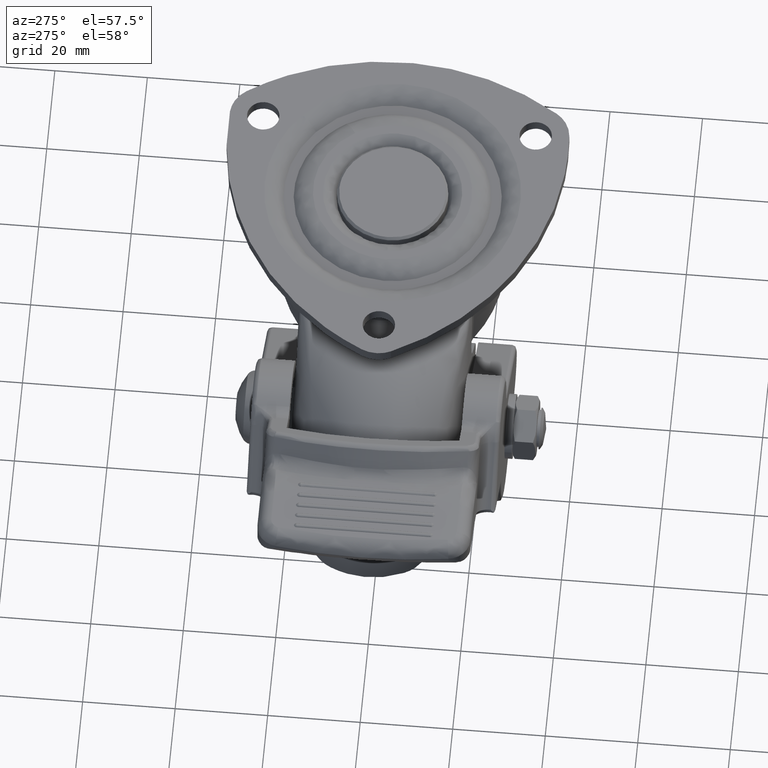
[diagram: clean part render]
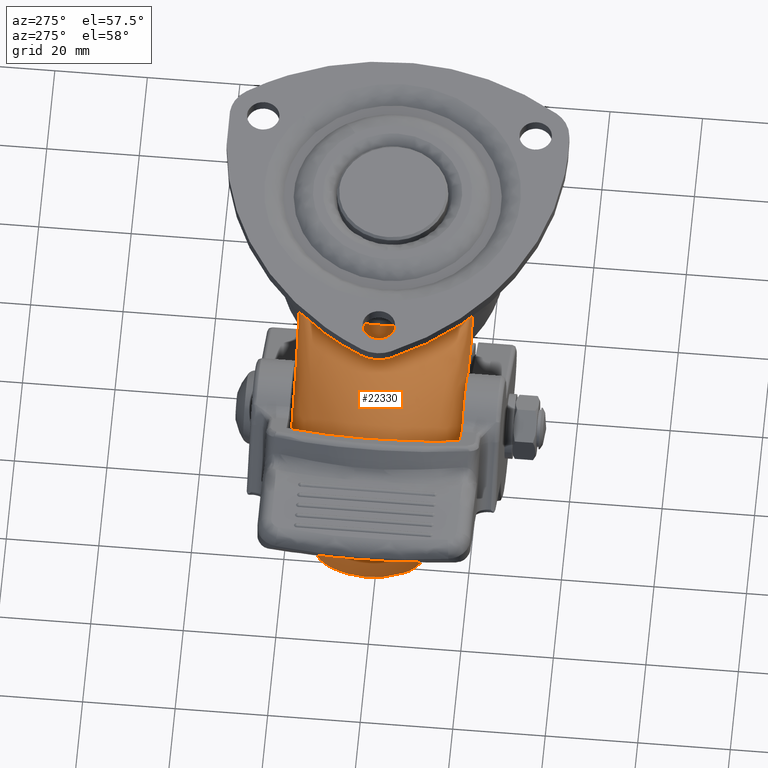
[diagram: same view with one face highlighted and labeled with its STEP entity id]
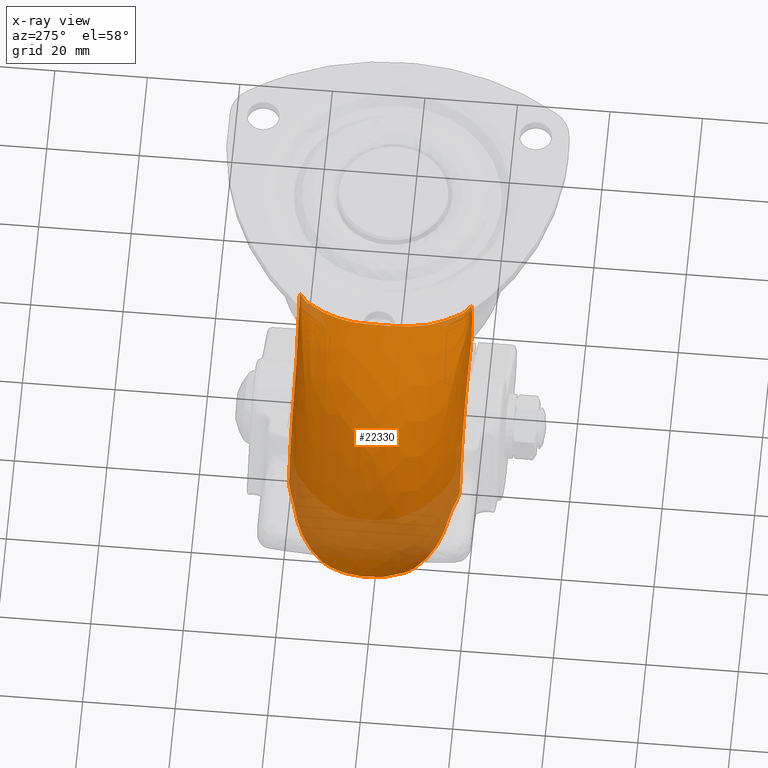
[diagram: x-ray of the same camera — body ghosted, the highlighted face saturated]
A machine part, auxiliary view. The second image highlights one B-rep face of the part: STEP entity #22330.
The next image is the same camera in x-ray: the body ghosted, the highlighted face saturated — about 21% of this face is hidden behind the body in this view.
In plain terms, the highlighted face is a freeform B-spline surface patch.
Its self-contained STEP definition (entity closure, byte-faithful):
#18083=CARTESIAN_POINT('',(-60.466797971124102,-10.128512670780280,-54.602575199805813));
#18084=VERTEX_POINT('',#18083);
#18090=CARTESIAN_POINT('',(-61.718251304565392,-7.903032520892540,-54.972843468652698));
#18091=VERTEX_POINT('',#18090);
#18092=CARTESIAN_POINT('',(-61.718251304565392,-7.903032520892540,-54.972843468652698));
#18093=CARTESIAN_POINT('',(-61.624866590054147,-8.099753985969592,-54.972843468652712));
#18094=CARTESIAN_POINT('',(-61.528467258896740,-8.293838108010540,-54.967180810788641));
#18095=CARTESIAN_POINT('',(-61.330034303373701,-8.676540781997288,-54.942048039310762));
#18096=CARTESIAN_POINT('',(-61.227999169820073,-8.865161442413083,-54.922595699395600));
#18097=CARTESIAN_POINT('',(-61.018739485048762,-9.236635277573623,-54.866565299175313));
#18098=CARTESIAN_POINT('',(-60.911511829889847,-9.419493080999649,-54.830025550216611));
#18099=CARTESIAN_POINT('',(-60.692428045911832,-9.778932869507697,-54.734869112291882));
#18100=CARTESIAN_POINT('',(-60.580564083260469,-9.955527322534673,-54.676353838549993));
#18101=CARTESIAN_POINT('',(-60.466797971124102,-10.128512670780280,-54.602575199805898));
#18102=B_SPLINE_CURVE_WITH_KNOTS('',3,(#18092,#18093,#18094,#18095,#18096,#18097,#18098,#18099,#18100,#18101),.UNSPECIFIED.,.F.,.U.,(4,2,2,2,4),(0.0,0.250000000000000,0.500000000000000,0.750000000000000,1.0),.UNSPECIFIED.);
#18103=EDGE_CURVE('',#18091,#18084,#18102,.T.);
#18105=CARTESIAN_POINT('',(-61.718251304565392,7.903032520892590,-54.972843468652698));
#18106=VERTEX_POINT('',#18105);
#18112=CARTESIAN_POINT('',(-60.466797971124102,10.128512670780280,-54.602575199805813));
#18113=VERTEX_POINT('',#18112);
#18114=CARTESIAN_POINT('',(-60.466797971124102,10.128512670780280,-54.602575199805813));
#18115=CARTESIAN_POINT('',(-60.579695754125417,9.956847647322075,-54.675790717068757));
#18116=CARTESIAN_POINT('',(-60.691071815873883,9.781091151946409,-54.734182256622077));
#18117=CARTESIAN_POINT('',(-60.909717071561680,9.422503511165989,-54.829342412505142));
#18118=CARTESIAN_POINT('',(-61.016995636873979,9.239658616491425,-54.866021854925997));
#18119=CARTESIAN_POINT('',(-61.226740063253153,8.867467863935890,-54.922333998783770));
#18120=CARTESIAN_POINT('',(-61.329245011569611,8.678048607791913,-54.941936458598072));
#18121=CARTESIAN_POINT('',(-61.528734359372862,8.293337355539771,-54.967226222356722));
#18122=CARTESIAN_POINT('',(-61.625172047392127,8.099110518616767,-54.972843468652691));
#18123=CARTESIAN_POINT('',(-61.718251304565392,7.903032520892580,-54.972843468652698));
#18124=B_SPLINE_CURVE_WITH_KNOTS('',3,(#18114,#18115,#18116,#18117,#18118,#18119,#18120,#18121,#18122,#18123),.UNSPECIFIED.,.F.,.U.,(4,2,2,2,4),(0.0,0.250000000000000,0.500000000000000,0.750000000000000,1.0),.UNSPECIFIED.);
#18125=EDGE_CURVE('',#18113,#18106,#18124,.T.);
#18255=CARTESIAN_POINT('',(-16.929508212747351,18.449999999999999,-31.490572299458400));
#18256=VERTEX_POINT('',#18255);
#18707=CARTESIAN_POINT('',(-16.684709619892299,18.600371866116252,-17.504925924885551));
#18708=VERTEX_POINT('',#18707);
#18709=CARTESIAN_POINT('',(-16.684709619892299,18.600371866116252,-17.504925924885551));
#18710=CARTESIAN_POINT('',(-16.683516152683829,18.601248613109700,-17.523105586868120));
#18711=CARTESIAN_POINT('',(-16.682583330263981,18.602416637662461,-17.541302941327132));
#18712=CARTESIAN_POINT('',(-16.680484152291690,18.604437510314021,-17.577681752365450));
#18713=CARTESIAN_POINT('',(-16.677362492659292,18.607444933900538,-17.632251731318380));
#18714=CARTESIAN_POINT('',(-16.670268241070861,18.614295377714640,-17.759594003307551));
#18715=CARTESIAN_POINT('',(-16.656837159920521,18.627331286247699,-18.014327706627750));
#18716=CARTESIAN_POINT('',(-16.632995913122070,18.650763055897709,-18.523990754345750));
#18717=CARTESIAN_POINT('',(-16.617708212276519,18.666388231368821,-18.961176784155839));
#18718=CARTESIAN_POINT('',(-16.593901667589321,18.691854999346379,-19.835982582441989));
#18719=CARTESIAN_POINT('',(-16.587066770668631,18.701122395893002,-20.420059890958530));
#18720=CARTESIAN_POINT('',(-16.590814822032939,18.704993357778310,-21.587010891630669));
#18721=CARTESIAN_POINT('',(-16.601382799105551,18.699609495030359,-22.170065009399320));
#18722=CARTESIAN_POINT('',(-16.629594332474209,18.681102511636439,-23.044046571854022));
#18723=CARTESIAN_POINT('',(-16.641475176252548,18.672930620467110,-23.335255507966892));
#18724=CARTESIAN_POINT('',(-16.668873047644460,18.653269048713710,-23.917491524843388));
#18725=CARTESIAN_POINT('',(-16.684268777845379,18.641914390446789,-24.208525204925650));
#18726=CARTESIAN_POINT('',(-16.732572430571260,18.605626495055031,-25.081513986527270));
#18727=CARTESIAN_POINT('',(-16.767558326959261,18.578468796767002,-25.663357973773309));
#18728=CARTESIAN_POINT('',(-16.813075847003400,18.542581412027271,-26.536439218776099));
#18729=CARTESIAN_POINT('',(-16.827098403567959,18.531426649374492,-26.827518525099588));
#18730=CARTESIAN_POINT('',(-16.851085877641861,18.512292516602990,-27.409868536885970));
#18731=CARTESIAN_POINT('',(-16.861783849017371,18.503900600582799,-27.701108190907888));
#18732=CARTESIAN_POINT('',(-16.909785064990508,18.465865892301430,-29.157556286640659));
#18733=CARTESIAN_POINT('',(-16.929508180070030,18.450000026286620,-30.323594405056280));
#18734=CARTESIAN_POINT('',(-16.929508212747312,18.450000000000031,-31.490572299458400));
#18735=B_SPLINE_CURVE_WITH_KNOTS('',3,(#18709,#18710,#18711,#18712,#18713,#18714,#18715,#18716,#18717,#18718,#18719,#18720,#18721,#18722,#18723,#18724,#18725,#18726,#18727,#18728,#18729,#18730,#18731,#18732,#18733,#18734),.UNSPECIFIED.,.F.,.U.,(4,2,1,1,1,1,2,2,2,2,2,2,2,2,4),(0.0,0.003906250000000,0.007812500000000,0.015625000000000,0.031250000000000,0.062499999999999,0.124999999999999,0.250000000000000,0.375000000000001,0.437500000000001,0.500000000000002,0.625000000000002,0.687500000000002,0.750000000000002,0.999999792899680),.UNSPECIFIED.);
#18736=EDGE_CURVE('',#18708,#18256,#18735,.T.);
#18738=CARTESIAN_POINT('',(-18.913129579166050,17.348199025214100,-16.033930861995000));
#18739=VERTEX_POINT('',#18738);
#18740=CARTESIAN_POINT('',(-18.913129579166050,17.348199025214100,-16.033930861995000));
#18741=CARTESIAN_POINT('',(-18.912339772923939,17.348835028366999,-16.034082131584501));
#18742=CARTESIAN_POINT('',(-18.911416165595860,17.349275410417320,-16.034210491063831));
#18743=CARTESIAN_POINT('',(-18.909702602957601,17.350351638149320,-16.034490760894990));
#18744=CARTESIAN_POINT('',(-18.907132262239649,17.351965726645460,-16.034911781665169));
#18745=CARTESIAN_POINT('',(-18.901134824126391,17.355730162086640,-16.035898477576190));
#18746=CARTESIAN_POINT('',(-18.889140049255861,17.363251954045349,-16.037889141615871));
#18747=CARTESIAN_POINT('',(-18.865150962192679,17.378267264062789,-16.041939687184929));
#18748=CARTESIAN_POINT('',(-18.817175103270340,17.408185116184701,-16.050318718880359));
#18749=CARTESIAN_POINT('',(-18.721236476946519,17.467572262274611,-16.068197824079729));
#18750=CARTESIAN_POINT('',(-18.639039182912970,17.517714832315761,-16.085478176109621));
#18751=CARTESIAN_POINT('',(-18.474733598430070,17.617003131589669,-16.122768993835351));
#18752=CARTESIAN_POINT('',(-18.365311526288739,17.681868207998779,-16.151250232416430));
#18753=CARTESIAN_POINT('',(-18.146986944884951,17.808992586545521,-16.216492898677259));
#18754=CARTESIAN_POINT('',(-18.037825138838631,17.871394412485252,-16.253346099182121));
#18755=CARTESIAN_POINT('',(-17.822143156875342,17.992632913345702,-16.336480598990121));
#18756=CARTESIAN_POINT('',(-17.715562055432141,18.051508294189020,-16.382725064757651));
#18757=CARTESIAN_POINT('',(-17.558426970888039,18.137016164258959,-16.461113116698421));
#18758=CARTESIAN_POINT('',(-17.506509159075051,18.165049437879670,-16.488757527570431));
#18759=CARTESIAN_POINT('',(-17.429495425713039,18.206345488552991,-16.532917619650711));
#18760=CARTESIAN_POINT('',(-17.403968611595619,18.219984961925849,-16.548088098331629));
#18761=CARTESIAN_POINT('',(-17.353241918162809,18.247000199362340,-16.579424114816000));
#18762=CARTESIAN_POINT('',(-17.327786881508811,18.260218242081269,-16.595340501393480));
#18763=CARTESIAN_POINT('',(-17.202841747069609,18.325650460999640,-16.677945499879240));
#18764=CARTESIAN_POINT('',(-17.107944156826338,18.374914936399939,-16.751602624233850));
#18765=CARTESIAN_POINT('',(-16.977820792980090,18.442537802886839,-16.879693603960501));
#18766=CARTESIAN_POINT('',(-16.936510404344780,18.464020774592679,-16.925362685633409));
#18767=CARTESIAN_POINT('',(-16.859537768580871,18.504247027711539,-17.024741689108190));
#18768=CARTESIAN_POINT('',(-16.824760395737869,18.522530649410800,-17.077381886383868));
#18769=CARTESIAN_POINT('',(-16.779839633339851,18.546451110118369,-17.161267064005688));
#18770=CARTESIAN_POINT('',(-16.766060187610371,18.553847369536079,-17.190076973111822));
#18771=CARTESIAN_POINT('',(-16.741195436108860,18.567343900284879,-17.249608509287562));
#18772=CARTESIAN_POINT('',(-16.730129459750199,18.573434819465380,-17.280337653134008));
#18773=CARTESIAN_POINT('',(-16.711346431638969,18.583978629412240,-17.342781953202000));
#18774=CARTESIAN_POINT('',(-16.703556024949961,18.588472450700291,-17.374727393318359));
#18775=CARTESIAN_POINT('',(-16.694516290297660,18.593909239891470,-17.423166084629401));
#18776=CARTESIAN_POINT('',(-16.690652852210668,18.596304031438351,-17.447513875382938));
#18777=CARTESIAN_POINT('',(-16.687776235450151,18.598210758723990,-17.472054908540411));
#18778=CARTESIAN_POINT('',(-16.686078101619380,18.599373068860679,-17.488458623324281));
#18779=CARTESIAN_POINT('',(-16.685328832487560,18.599907293696340,-17.496816063398018));
#18780=CARTESIAN_POINT('',(-16.684709619892299,18.600371866116252,-17.504925924885551));
#18781=B_SPLINE_CURVE_WITH_KNOTS('',3,(#18740,#18741,#18742,#18743,#18744,#18745,#18746,#18747,#18748,#18749,#18750,#18751,#18752,#18753,#18754,#18755,#18756,#18757,#18758,#18759,#18760,#18761,#18762,#18763,#18764,#18765,#18766,#18767,#18768,#18769,#18770,#18771,#18772,#18773,#18774,#18775,#18776,#18777,#18778,#18779,#18780),.UNSPECIFIED.,.F.,.U.,(4,2,1,1,1,1,1,1,2,2,2,2,2,2,2,2,2,2,2,2,2,1,2,4),(0.0,0.000976562500001,0.001953125000001,0.003906250000002,0.007812500000003,0.015625000000005,0.031250000000004,0.062500000000003,0.124999999999998,0.249999999999989,0.374999999999980,0.499999999999971,0.562499999999967,0.593749999999967,0.624999999999968,0.749999999999978,0.812499999999983,0.874999999999987,0.906249999999990,0.937499999999992,0.968749999999995,0.984374999999996,0.992187499999998,1.0),.UNSPECIFIED.);
#18782=EDGE_CURVE('',#18739,#18708,#18781,.T.);
#18784=CARTESIAN_POINT('',(-19.960117991003450,16.272258968390499,-15.768175099646051));
#18785=VERTEX_POINT('',#18784);
#18786=CARTESIAN_POINT('',(-19.960117991003450,16.272258968390499,-15.768175099646051));
#18787=CARTESIAN_POINT('',(-19.958857290973459,16.273749812864828,-15.768584798991659));
#18788=CARTESIAN_POINT('',(-19.957824086394151,16.275419029059631,-15.768994519115040));
#18789=CARTESIAN_POINT('',(-19.955526805473610,16.278576965730039,-15.769811878902040));
#18790=CARTESIAN_POINT('',(-19.952077605538850,16.283311619011521,-15.771035833307749));
#18791=CARTESIAN_POINT('',(-19.944006606745241,16.294343412311569,-15.773877295924690));
#18792=CARTESIAN_POINT('',(-19.927773811480922,16.316344319413339,-15.779503807545650));
#18793=CARTESIAN_POINT('',(-19.894950211800069,16.360097316814390,-15.790541412195280));
#18794=CARTESIAN_POINT('',(-19.827910403223179,16.446622422978791,-15.811833201792959));
#18795=CARTESIAN_POINT('',(-19.768186203071711,16.519150783350110,-15.828991618479231));
#18796=CARTESIAN_POINT('',(-19.645987895210400,16.662117364354931,-15.862403081396700));
#18797=CARTESIAN_POINT('',(-19.560756989718751,16.754758572677801,-15.883518737687860));
#18798=CARTESIAN_POINT('',(-19.384509599237479,16.934217000538599,-15.925426719355229));
#18799=CARTESIAN_POINT('',(-19.293594964772371,17.020937001445411,-15.946185924569480));
#18800=CARTESIAN_POINT('',(-19.153562783129939,17.146780728998209,-15.978208079293861));
#18801=CARTESIAN_POINT('',(-19.106273565322400,17.188021651068869,-15.989025364681201));
#18802=CARTESIAN_POINT('',(-19.010545753788989,17.269130141080321,-16.011106659467501));
#18803=CARTESIAN_POINT('',(-18.962014311461910,17.309071788901239,-16.022392412207950));
#18804=CARTESIAN_POINT('',(-18.913129579166050,17.348199025214100,-16.033930861995000));
#18805=B_SPLINE_CURVE_WITH_KNOTS('',3,(#18786,#18787,#18788,#18789,#18790,#18791,#18792,#18793,#18794,#18795,#18796,#18797,#18798,#18799,#18800,#18801,#18802,#18803,#18804),.UNSPECIFIED.,.F.,.U.,(4,2,1,1,1,1,1,2,2,2,2,4),(0.0,0.003906249999998,0.007812499999995,0.015624999999997,0.031249999999998,0.062500000000000,0.125000000000001,0.249999999999998,0.499999999999997,0.749999999999996,0.874999999999998,1.0),.UNSPECIFIED.);
#18806=EDGE_CURVE('',#18785,#18739,#18805,.T.);
#18808=CARTESIAN_POINT('',(-23.943917254935950,9.960822874164851,-14.352009446166219));
#18809=VERTEX_POINT('',#18808);
#18810=CARTESIAN_POINT('',(-23.943917254935950,9.960822874164846,-14.352009446166219));
#18811=CARTESIAN_POINT('',(-23.815257376969189,10.248038893553630,-14.407332839813300));
#18812=CARTESIAN_POINT('',(-23.681554828954440,10.532319235524170,-14.463776348143091));
#18813=CARTESIAN_POINT('',(-23.404808975530131,11.094157643217700,-14.578164559104509));
#18814=CARTESIAN_POINT('',(-23.261689275290330,11.371887374079339,-14.636141975896880));
#18815=CARTESIAN_POINT('',(-22.818370313930309,12.195847406724511,-14.811707600720760));
#18816=CARTESIAN_POINT('',(-22.504236451298770,12.732871436828040,-14.930898721209090));
#18817=CARTESIAN_POINT('',(-21.839650501997760,13.783611815874620,-15.170405606583479));
#18818=CARTESIAN_POINT('',(-21.489197061267010,14.297329486990590,-15.290711674823440));
#18819=CARTESIAN_POINT('',(-20.936322472464070,15.050806657700880,-15.470443839569009));
#18820=CARTESIAN_POINT('',(-20.747492456204689,15.299109831839271,-15.530242883135420));
#18821=CARTESIAN_POINT('',(-20.360690301866320,15.789992858965020,-15.649485167011051));
#18822=CARTESIAN_POINT('',(-20.162818037238392,16.032454662740928,-15.708898883065901));
#18823=CARTESIAN_POINT('',(-19.960117991003450,16.272258968390499,-15.768175099646051));
#18824=B_SPLINE_CURVE_WITH_KNOTS('',3,(#18810,#18811,#18812,#18813,#18814,#18815,#18816,#18817,#18818,#18819,#18820,#18821,#18822,#18823),.UNSPECIFIED.,.F.,.U.,(4,2,2,2,2,2,4),(0.0,0.125000000000000,0.250000000000000,0.500000000000001,0.750000000000001,0.875000000000001,1.0),.UNSPECIFIED.);
#18825=EDGE_CURVE('',#18809,#18785,#18824,.T.);
#19001=CARTESIAN_POINT('',(-23.943917254939301,-9.960822874157440,-14.352009446164800));
#19002=VERTEX_POINT('',#19001);
#19018=CARTESIAN_POINT('',(-24.000000000000501,9.834202705738131,-14.327712491554561));
#19019=VERTEX_POINT('',#19018);
#19020=CARTESIAN_POINT('',(-24.000000000000501,9.834202705738131,-14.327712491554561));
#19021=CARTESIAN_POINT('',(-23.999992098013561,9.834220750433810,-14.327715940801470));
#19022=CARTESIAN_POINT('',(-23.999984196057461,9.834238795140422,-14.327719390061860));
#19023=CARTESIAN_POINT('',(-23.999976294037801,9.834256839819641,-14.327722839319939));
#19024=CARTESIAN_POINT('',(-23.981466002472711,9.876526068183797,-14.335802643663410));
#19025=CARTESIAN_POINT('',(-23.962779486141532,9.918715458479008,-14.343898738628370));
#19026=CARTESIAN_POINT('',(-23.943917254936000,9.960822874164840,-14.352009446166219));
#19027=B_SPLINE_CURVE_WITH_KNOTS('',3,(#19020,#19021,#19022,#19023,#19024,#19025,#19026),.UNSPECIFIED.,.F.,.U.,(4,3,4),(0.0,0.000426716548976,1.0),.UNSPECIFIED.);
#19028=EDGE_CURVE('',#19019,#18809,#19027,.T.);
#19030=CARTESIAN_POINT('',(-24.000000000000501,-9.834202705738120,-14.327712491554561));
#19031=VERTEX_POINT('',#19030);
#19032=CARTESIAN_POINT('',(-24.000000000000501,-9.834202705738120,-14.327712491554561));
#19033=CARTESIAN_POINT('',(-24.163848561767651,-9.448291504722510,-14.253554290067431));
#19034=CARTESIAN_POINT('',(-24.313523018171960,-9.055798466848678,-14.181728829247250));
#19035=CARTESIAN_POINT('',(-24.585069639983299,-8.260190160213568,-14.044193457270319));
#19036=CARTESIAN_POINT('',(-24.705972858028680,-7.860000422963479,-13.978989591953290));
#19037=CARTESIAN_POINT('',(-25.028269112781182,-6.652743035947878,-13.795270451726440));
#19038=CARTESIAN_POINT('',(-25.189111346496929,-5.838966751691269,-13.688663485997120));
#19039=CARTESIAN_POINT('',(-25.425773639843481,-4.196111687380481,-13.513747825873491));
#19040=CARTESIAN_POINT('',(-25.501609985667478,-3.367032051471360,-13.445472618873310));
#19041=CARTESIAN_POINT('',(-25.572293597394331,-2.114389832684830,-13.376159483700810));
#19042=CARTESIAN_POINT('',(-25.588729603023559,-1.695346791288512,-13.358563146844711));
#19043=CARTESIAN_POINT('',(-25.604887822766429,-1.064804298709307,-13.340833898981870));
#19044=CARTESIAN_POINT('',(-25.608849811019681,-0.854292812986555,-13.336367039902401));
#19045=CARTESIAN_POINT('',(-25.614137673237959,-0.432633288261790,-13.330368135369399));
#19046=CARTESIAN_POINT('',(-25.615463951801871,-0.221299118611311,-13.328836716401200));
#19047=CARTESIAN_POINT('',(-25.615588020330971,0.412111690833734,-13.328694244244581));
#19048=CARTESIAN_POINT('',(-25.610618607442088,0.833381171221772,-13.334528793346490));
#19049=CARTESIAN_POINT('',(-25.589471084922081,1.673815663368073,-13.357765844717891));
#19050=CARTESIAN_POINT('',(-25.573252931374402,2.092976506955476,-13.375166748240320));
#19051=CARTESIAN_POINT('',(-25.503227250635170,3.346870996659655,-13.443986878567371));
#19052=CARTESIAN_POINT('',(-25.427864287081420,4.177994194770743,-13.512057580375609));
#19053=CARTESIAN_POINT('',(-25.191204318520310,5.827979473593138,-13.687259104862260));
#19054=CARTESIAN_POINT('',(-25.029886891875570,6.646841743924091,-13.794359446179550));
#19055=CARTESIAN_POINT('',(-24.758983791038681,7.661392301203217,-13.948768867325830));
#19056=CARTESIAN_POINT('',(-24.701417813211691,7.863546027570443,-13.980632700847380));
#19057=CARTESIAN_POINT('',(-24.579710648768089,8.264812277401765,-14.045950296296850));
#19058=CARTESIAN_POINT('',(-24.451313645077850,8.663477797580335,-14.112924012837709));
#19059=CARTESIAN_POINT('',(-24.273623135479689,9.155207129621992,-14.200425911763100));
#19060=CARTESIAN_POINT('',(-24.159052939998119,9.447223457283293,-14.254483542617621));
#19061=CARTESIAN_POINT('',(-24.080878773027599,9.641223146769224,-14.290853184635290));
#19062=CARTESIAN_POINT('',(-24.040962140442289,9.737724905484228,-14.309172941182780));
#19063=CARTESIAN_POINT('',(-24.000000000000501,9.834202705738131,-14.327712491554561));
#19064=B_SPLINE_CURVE_WITH_KNOTS('',3,(#19032,#19033,#19034,#19035,#19036,#19037,#19038,#19039,#19040,#19041,#19042,#19043,#19044,#19045,#19046,#19047,#19048,#19049,#19050,#19051,#19052,#19053,#19054,#19055,#19056,#19057,#19058,#19059,#19060,#19061,#19062,#19063),.UNSPECIFIED.,.F.,.U.,(4,2,2,2,2,2,2,2,2,2,2,2,2,1,1,2,4),(0.0,0.062500000000000,0.125000000000000,0.250000000000000,0.375000000000000,0.437500000000000,0.468750000000000,0.500000000000000,0.562500000000000,0.625000000000000,0.750000000000000,0.875000000000000,0.906250000000000,0.937500000000000,0.968750000000000,0.984375000000000,1.0),.UNSPECIFIED.);
#19065=EDGE_CURVE('',#19031,#19019,#19064,.T.);
#19067=CARTESIAN_POINT('',(-23.943917254939301,-9.960822874157440,-14.352009446164800));
#19068=CARTESIAN_POINT('',(-23.962779486143699,-9.918715458474063,-14.343898738627431));
#19069=CARTESIAN_POINT('',(-23.981466002473791,-9.876526068181322,-14.335802643662960));
#19070=CARTESIAN_POINT('',(-23.999976294037801,-9.834256839819641,-14.327722839319961));
#19071=CARTESIAN_POINT('',(-23.999984196057461,-9.834238795140417,-14.327719390061880));
#19072=CARTESIAN_POINT('',(-23.999992098013561,-9.834220750433804,-14.327715940801470));
#19073=CARTESIAN_POINT('',(-24.000000000000501,-9.834202705738120,-14.327712491554561));
#19074=B_SPLINE_CURVE_WITH_KNOTS('',3,(#19067,#19068,#19069,#19070,#19071,#19072,#19073),.UNSPECIFIED.,.F.,.U.,(4,3,4),(0.0,0.999573283450908,1.0),.UNSPECIFIED.);
#19075=EDGE_CURVE('',#19002,#19031,#19074,.T.);
#19525=CARTESIAN_POINT('',(-19.960117991003351,-16.272258968390599,-15.768175099646101));
#19526=VERTEX_POINT('',#19525);
#19527=CARTESIAN_POINT('',(-19.960117991003351,-16.272258968390599,-15.768175099646101));
#19528=CARTESIAN_POINT('',(-19.961551144818809,-16.270285174354420,-15.767717229794229));
#19529=CARTESIAN_POINT('',(-19.963271886287568,-16.268527244944121,-15.767252702678199));
#19530=CARTESIAN_POINT('',(-19.966425133310150,-16.264794766160840,-15.766330214283460));
#19531=CARTESIAN_POINT('',(-19.971154187241250,-16.259195491849081,-15.764946439495979));
#19532=CARTESIAN_POINT('',(-19.982182930676188,-16.246126625849200,-15.761717336213630));
#19533=CARTESIAN_POINT('',(-20.004217558425431,-16.219973326212859,-15.755257947304640));
#19534=CARTESIAN_POINT('',(-20.048195407727921,-16.167604478252240,-15.742334436397041));
#19535=CARTESIAN_POINT('',(-20.135785718141960,-16.062617955501828,-15.716468465356581));
#19536=CARTESIAN_POINT('',(-20.309506587730379,-15.851650835417260,-15.664660794504480));
#19537=CARTESIAN_POINT('',(-20.651122269144690,-15.425748402903380,-15.560746253660540));
#19538=CARTESIAN_POINT('',(-20.933987509789901,-15.053907976476800,-15.471188746129080));
#19539=CARTESIAN_POINT('',(-21.486496609702868,-14.301169854193830,-15.291617591613941));
#19540=CARTESIAN_POINT('',(-21.837231462170180,-13.787293774045169,-15.171256392329880));
#19541=CARTESIAN_POINT('',(-22.336674050577070,-12.997865920057009,-14.991296134191209));
#19542=CARTESIAN_POINT('',(-22.498705725508199,-12.731614551408009,-14.931416445748040));
#19543=CARTESIAN_POINT('',(-22.813754890558521,-12.192727854624470,-14.812240284783011));
#19544=CARTESIAN_POINT('',(-22.966878427125462,-11.919884164906790,-14.752900834611109));
#19545=CARTESIAN_POINT('',(-23.411193688674778,-11.093902520058590,-14.576921869251381));
#19546=CARTESIAN_POINT('',(-23.687665622566399,-10.532870469532041,-14.462196943265781));
#19547=CARTESIAN_POINT('',(-23.943917254939279,-9.960822874157428,-14.352009446164789));
#19548=B_SPLINE_CURVE_WITH_KNOTS('',3,(#19527,#19528,#19529,#19530,#19531,#19532,#19533,#19534,#19535,#19536,#19537,#19538,#19539,#19540,#19541,#19542,#19543,#19544,#19545,#19546,#19547),.UNSPECIFIED.,.F.,.U.,(4,2,1,1,1,1,1,1,1,2,2,2,2,4),(0.0,0.000976562499999,0.001953124999998,0.003906249999998,0.007812499999999,0.015624999999998,0.031249999999998,0.062499999999998,0.124999999999998,0.249999999999998,0.499999999999998,0.624999999999998,0.749999999999998,1.0),.UNSPECIFIED.);
#19549=EDGE_CURVE('',#19526,#19002,#19548,.T.);
#19551=CARTESIAN_POINT('',(-18.913129579165901,-17.348199025214250,-16.033930861995049));
#19552=VERTEX_POINT('',#19551);
#19553=CARTESIAN_POINT('',(-18.913129579165901,-17.348199025214250,-16.033930861995049));
#19554=CARTESIAN_POINT('',(-18.913966574577859,-17.347678241674579,-16.033765802088158));
#19555=CARTESIAN_POINT('',(-18.914664760388469,-17.346970000325200,-16.033568545305691));
#19556=CARTESIAN_POINT('',(-18.916199860527382,-17.345740231072721,-16.033206371873160));
#19557=CARTESIAN_POINT('',(-18.918502085546219,-17.343895108076691,-16.032663335890550));
#19558=CARTESIAN_POINT('',(-18.923870964704090,-17.339586535899912,-16.031397815222590));
#19559=CARTESIAN_POINT('',(-18.934596783023402,-17.330956239918841,-16.028872980035089));
#19560=CARTESIAN_POINT('',(-18.956000475062321,-17.313642954884219,-16.023847757388872));
#19561=CARTESIAN_POINT('',(-18.998614607811401,-17.278804927314649,-16.013892074272992));
#19562=CARTESIAN_POINT('',(-19.083058100292700,-17.208277648272009,-15.994335233443159));
#19563=CARTESIAN_POINT('',(-19.154053307858501,-17.146348686663480,-15.978095890921461));
#19564=CARTESIAN_POINT('',(-19.294088617068081,-17.020475665853859,-15.946073071047641));
#19565=CARTESIAN_POINT('',(-19.384845409716910,-16.933876430261911,-15.925347074912210));
#19566=CARTESIAN_POINT('',(-19.560482616107709,-16.755036586297340,-15.883583773643620));
#19567=CARTESIAN_POINT('',(-19.645372178696022,-16.662801519669070,-15.862560075735409));
#19568=CARTESIAN_POINT('',(-19.767560900509238,-16.519900255691930,-15.829168201336710));
#19569=CARTESIAN_POINT('',(-19.807429556769989,-16.471506647798979,-15.817722187441650));
#19570=CARTESIAN_POINT('',(-19.865803948766850,-16.397712675266860,-15.799797718569691));
#19571=CARTESIAN_POINT('',(-19.894633436735489,-16.360514498165632,-15.790645633434901));
#19572=CARTESIAN_POINT('',(-19.922894693908930,-16.322849430867180,-15.781145157157990));
#19573=CARTESIAN_POINT('',(-19.941605253337599,-16.297633701564511,-15.774726125004580));
#19574=CARTESIAN_POINT('',(-19.950991953409840,-16.284839913842980,-15.771439364580990));
#19575=CARTESIAN_POINT('',(-19.960117991003351,-16.272258968390599,-15.768175099646101));
#19576=B_SPLINE_CURVE_WITH_KNOTS('',3,(#19553,#19554,#19555,#19556,#19557,#19558,#19559,#19560,#19561,#19562,#19563,#19564,#19565,#19566,#19567,#19568,#19569,#19570,#19571,#19572,#19573,#19574,#19575),.UNSPECIFIED.,.F.,.U.,(4,2,1,1,1,1,1,1,2,2,2,2,1,2,4),(0.0,0.001953125000001,0.003906250000002,0.007812500000005,0.015625000000005,0.031250000000006,0.062500000000009,0.125000000000013,0.250000000000015,0.500000000000011,0.750000000000008,0.875000000000007,0.937500000000007,0.968750000000003,1.0),.UNSPECIFIED.);
#19577=EDGE_CURVE('',#19552,#19526,#19576,.T.);
#19579=CARTESIAN_POINT('',(-16.684709619892249,-18.600371866116301,-17.504925924885601));
#19580=VERTEX_POINT('',#19579);
#19581=CARTESIAN_POINT('',(-16.684709619892249,-18.600371866116301,-17.504925924885601));
#19582=CARTESIAN_POINT('',(-16.685276509880239,-18.599836852073189,-17.496757476848462));
#19583=CARTESIAN_POINT('',(-16.686080755153618,-18.599371204584770,-17.488430484187049));
#19584=CARTESIAN_POINT('',(-16.687779492142869,-18.598208577834409,-17.472025964518430));
#19585=CARTESIAN_POINT('',(-16.690654274797669,-18.596303257582122,-17.447510545241460));
#19586=CARTESIAN_POINT('',(-16.699630862185948,-18.590738985910331,-17.390942106986760));
#19587=CARTESIAN_POINT('',(-16.711154790157739,-18.584088307733989,-17.343524563522550));
#19588=CARTESIAN_POINT('',(-16.729831529150879,-18.573600015585459,-17.281225353749399));
#19589=CARTESIAN_POINT('',(-16.740907788058180,-18.567501542309881,-17.250373112397000));
#19590=CARTESIAN_POINT('',(-16.765680975960350,-18.554051737433721,-17.190910988831710));
#19591=CARTESIAN_POINT('',(-16.779394961864611,-18.546689320572511,-17.162172207929761));
#19592=CARTESIAN_POINT('',(-16.824041696301521,-18.522910591945809,-17.078578425157840));
#19593=CARTESIAN_POINT('',(-16.858457760310170,-18.504814144832899,-17.026329613349759));
#19594=CARTESIAN_POINT('',(-16.934754247004111,-18.464935948913030,-16.927443572884560));
#19595=CARTESIAN_POINT('',(-16.976651752682610,-18.443145455765691,-16.880882388125400));
#19596=CARTESIAN_POINT('',(-17.064786617234290,-18.397343043405652,-16.794048495637341));
#19597=CARTESIAN_POINT('',(-17.110947933304850,-18.373369352935249,-16.753795330339798));
#19598=CARTESIAN_POINT('',(-17.205663088037848,-18.324071140685771,-16.678750073335550));
#19599=CARTESIAN_POINT('',(-17.254354094084871,-18.298675852748019,-16.643841780137048));
#19600=CARTESIAN_POINT('',(-17.328941384620041,-18.259612723645098,-16.594601828330848));
#19601=CARTESIAN_POINT('',(-17.354181108855300,-18.246500925189711,-16.578831819001682));
#19602=CARTESIAN_POINT('',(-17.404602382890811,-18.219646503651258,-16.547709093362869));
#19603=CARTESIAN_POINT('',(-17.430030195255728,-18.206059341409141,-16.532604301227821));
#19604=CARTESIAN_POINT('',(-17.506900955115949,-18.164838122432009,-16.488546419234702));
#19605=CARTESIAN_POINT('',(-17.558928626975280,-18.136745396552410,-16.460845042474791));
#19606=CARTESIAN_POINT('',(-17.664281559188169,-18.079411243140932,-16.408324828689931));
#19607=CARTESIAN_POINT('',(-17.717527999599831,-18.050211787190371,-16.383553819947419));
#19608=CARTESIAN_POINT('',(-17.824271448231720,-17.991190194295012,-16.336903565518401));
#19609=CARTESIAN_POINT('',(-17.877875589655471,-17.961310027671299,-16.314971865661072));
#19610=CARTESIAN_POINT('',(-18.039240082629210,-17.870588277835161,-16.252855376874891));
#19611=CARTESIAN_POINT('',(-18.147545463741000,-17.808668578267142,-16.216321562997909));
#19612=CARTESIAN_POINT('',(-18.365096323122629,-17.681992311127541,-16.151318980916919));
#19613=CARTESIAN_POINT('',(-18.474345926648919,-17.617234595466002,-16.122865163460141));
#19614=CARTESIAN_POINT('',(-18.638684767642481,-17.517930396330730,-16.085554542896659));
#19615=CARTESIAN_POINT('',(-18.693542872814731,-17.484467122282989,-16.074017166186621));
#19616=CARTESIAN_POINT('',(-18.775924679675459,-17.433719594026730,-16.058006028607679));
#19617=CARTESIAN_POINT('',(-18.803381747537419,-17.416723521061041,-16.052888794971889));
#19618=CARTESIAN_POINT('',(-18.858271110919059,-17.382578602469369,-16.043087580292081));
#19619=CARTESIAN_POINT('',(-18.885600021195071,-17.365494716861459,-16.038420520792130));
#19620=CARTESIAN_POINT('',(-18.913129579165901,-17.348199025214250,-16.033930861995049));
#19621=B_SPLINE_CURVE_WITH_KNOTS('',3,(#19581,#19582,#19583,#19584,#19585,#19586,#19587,#19588,#19589,#19590,#19591,#19592,#19593,#19594,#19595,#19596,#19597,#19598,#19599,#19600,#19601,#19602,#19603,#19604,#19605,#19606,#19607,#19608,#19609,#19610,#19611,#19612,#19613,#19614,#19615,#19616,#19617,#19618,#19619,#19620),.UNSPECIFIED.,.F.,.U.,(4,2,1,1,2,2,2,2,2,2,2,2,2,2,2,2,2,2,2,2,4),(0.0,0.007812500000002,0.015625000000004,0.031250000000006,0.062500000000005,0.093750000000004,0.125000000000003,0.187500000000001,0.249999999999999,0.312499999999998,0.374999999999996,0.406249999999995,0.437499999999995,0.499999999999995,0.562499999999995,0.624999999999995,0.749999999999996,0.874999999999996,0.937499999999997,0.968749999999998,1.0),.UNSPECIFIED.);
#19622=EDGE_CURVE('',#19580,#19552,#19621,.T.);
#19624=CARTESIAN_POINT('',(-16.929508212747301,-18.449999999999999,-31.490572299458400));
#19625=VERTEX_POINT('',#19624);
#19626=CARTESIAN_POINT('',(-16.929508212747258,-18.450000000000031,-31.490572299458400));
#19627=CARTESIAN_POINT('',(-16.929508180047868,-18.450000026304309,-30.322784034766400));
#19628=CARTESIAN_POINT('',(-16.909758010465460,-18.465887588761468,-29.156118717884109));
#19629=CARTESIAN_POINT('',(-16.861712533996911,-18.503957043360661,-27.699099155616828));
#19630=CARTESIAN_POINT('',(-16.851009018758461,-18.512353967976409,-27.407754631822041));
#19631=CARTESIAN_POINT('',(-16.826993477252628,-18.531510201849368,-26.825221070017211));
#19632=CARTESIAN_POINT('',(-16.812958626258052,-18.542674369647209,-26.534068333183932));
#19633=CARTESIAN_POINT('',(-16.767411925345570,-18.578583142943820,-25.660796255418081));
#19634=CARTESIAN_POINT('',(-16.732416814591058,-18.605746050354028,-25.078864541661311));
#19635=CARTESIAN_POINT('',(-16.684116939254949,-18.642027124259268,-24.205698957504691));
#19636=CARTESIAN_POINT('',(-16.668725353306900,-18.653377104329881,-23.914598763322719));
#19637=CARTESIAN_POINT('',(-16.641342915522682,-18.673023448172430,-23.332196379835931));
#19638=CARTESIAN_POINT('',(-16.629478848405071,-18.681181043335069,-23.040923818320209));
#19639=CARTESIAN_POINT('',(-16.601311055364079,-18.699650968048910,-22.166925261798561));
#19640=CARTESIAN_POINT('',(-16.590778986036980,-18.705005584741532,-21.584027051003488));
#19641=CARTESIAN_POINT('',(-16.587085695557370,-18.701092478886189,-20.417741234412500));
#19642=CARTESIAN_POINT('',(-16.593933993116199,-18.691817743187141,-19.834336404882599));
#19643=CARTESIAN_POINT('',(-16.625677241727299,-18.657866138783380,-18.668802592234591));
#19644=CARTESIAN_POINT('',(-16.650581313141810,-18.633180314175320,-18.086324013427959));
#19645=CARTESIAN_POINT('',(-16.684709619892249,-18.600371866116301,-17.504925924885601));
#19646=B_SPLINE_CURVE_WITH_KNOTS('',3,(#19626,#19627,#19628,#19629,#19630,#19631,#19632,#19633,#19634,#19635,#19636,#19637,#19638,#19639,#19640,#19641,#19642,#19643,#19644,#19645),.UNSPECIFIED.,.F.,.U.,(4,2,2,2,2,2,2,2,2,4),(0.000000206956606,0.249999999999999,0.312499999999999,0.374999999999998,0.499999999999998,0.562499999999998,0.624999999999998,0.749999999999999,0.874999999999999,1.0),.UNSPECIFIED.);
#19647=EDGE_CURVE('',#19625,#19580,#19646,.T.);
#21486=CARTESIAN_POINT('',(-61.718251304565399,-7.903032520892521,-54.972843468652727));
#21487=CARTESIAN_POINT('',(-62.009527910679992,-7.289437876443237,-54.972843468652748));
#21488=CARTESIAN_POINT('',(-62.265316901022757,-6.662727384754888,-54.972843468652648));
#21489=CARTESIAN_POINT('',(-62.706816998772510,-5.383406357449102,-54.972843468652648));
#21490=CARTESIAN_POINT('',(-62.892691744875997,-4.730856300962203,-54.972843468652677));
#21491=CARTESIAN_POINT('',(-63.118282599514913,-3.732361200084364,-54.972843468652677));
#21492=CARTESIAN_POINT('',(-63.184663703919547,-3.395649614654066,-54.972843468652698));
#21493=CARTESIAN_POINT('',(-63.270026178722297,-2.888815388641710,-54.972843468652719));
#21494=CARTESIAN_POINT('',(-63.296135050431971,-2.719506307902269,-54.972843468652698));
#21495=CARTESIAN_POINT('',(-63.343655429680787,-2.380158413966838,-54.972843468652712));
#21496=CARTESIAN_POINT('',(-63.365078848850970,-2.210007995410448,-54.972843468652698));
#21497=CARTESIAN_POINT('',(-63.460246233268222,-1.358843980660662,-54.972843468652712));
#21498=CARTESIAN_POINT('',(-63.498196661049420,-0.677912768860828,-54.972843468652719));
#21499=CARTESIAN_POINT('',(-63.497970803595649,0.683949654738831,-54.972843468652719));
#21500=CARTESIAN_POINT('',(-63.459796850248033,1.364880866538657,-54.972843468652691));
#21501=CARTESIAN_POINT('',(-63.364346219990502,2.216044881288444,-54.972843468652677));
#21502=CARTESIAN_POINT('',(-63.342873297206658,2.386105287730067,-54.972843468652663));
#21503=CARTESIAN_POINT('',(-63.295382987739622,2.724503393070445,-54.972843468652670));
#21504=CARTESIAN_POINT('',(-63.269344144898312,2.893040567037137,-54.972843468652677));
#21505=CARTESIAN_POINT('',(-63.184428454736377,3.396690087096408,-54.972843468652712));
#21506=CARTESIAN_POINT('',(-63.118759362685338,3.729842427327381,-54.972843468652712));
#21507=CARTESIAN_POINT('',(-62.894972056725642,4.721571661776174,-54.972843468652677));
#21508=CARTESIAN_POINT('',(-62.710179220194902,5.372451186601349,-54.972843468652670));
#21509=CARTESIAN_POINT('',(-62.268905151659197,6.653523455825726,-54.972843468652670));
#21510=CARTESIAN_POINT('',(-62.012265694686548,7.283670541996085,-54.972843468652727));
#21511=CARTESIAN_POINT('',(-61.718251304565378,7.903032520892587,-54.972843468652727));
#21512=B_SPLINE_CURVE_WITH_KNOTS('',3,(#21486,#21487,#21488,#21489,#21490,#21491,#21492,#21493,#21494,#21495,#21496,#21497,#21498,#21499,#21500,#21501,#21502,#21503,#21504,#21505,#21506,#21507,#21508,#21509,#21510,#21511),.UNSPECIFIED.,.F.,.U.,(4,2,2,2,2,2,2,2,2,2,2,2,4),(0.0,0.124999999999999,0.249999999999998,0.312499999999998,0.343749999999998,0.374999999999998,0.499999999999998,0.624999999999998,0.656249999999998,0.687499999999998,0.749999999999998,0.874999999999999,1.0),.UNSPECIFIED.);
#21513=EDGE_CURVE('',#18091,#18106,#21512,.T.);
#21524=CARTESIAN_POINT('',(-23.855295433922350,18.449999999999999,-31.490569399278051));
#21525=VERTEX_POINT('',#21524);
#21526=CARTESIAN_POINT('',(-16.929508212747351,18.449999999999999,-31.490572299458400));
#21527=CARTESIAN_POINT('',(-19.254194102388400,18.449999999999999,-31.490571325993852));
#21528=CARTESIAN_POINT('',(-21.566134642497069,18.449999999999999,-31.490570357866432));
#21529=CARTESIAN_POINT('',(-23.855295433922350,18.449999999999999,-31.490569399278051));
#21530=B_SPLINE_CURVE_WITH_KNOTS('',3,(#21526,#21527,#21528,#21529),.UNSPECIFIED.,.F.,.U.,(4,4),(0.002334281326244,0.113092800419647),.UNSPECIFIED.);
#21531=EDGE_CURVE('',#18256,#21525,#21530,.T.);
#21554=CARTESIAN_POINT('',(-44.454394273633753,18.449999999999999,-47.691436950227200));
#21555=VERTEX_POINT('',#21554);
#21569=CARTESIAN_POINT('',(-43.396532885219948,18.449999999999999,-44.427223938196249));
#21570=VERTEX_POINT('',#21569);
#21571=CARTESIAN_POINT('',(-43.396532885219948,18.449999999999999,-44.427223938196249));
#21572=CARTESIAN_POINT('',(-43.836519901263650,18.449999999999999,-45.481559646345723));
#21573=CARTESIAN_POINT('',(-44.190696588189290,18.449999999999999,-46.574019732191857));
#21574=CARTESIAN_POINT('',(-44.454394273633753,18.449999999999999,-47.691436950227200));
#21575=B_SPLINE_CURVE_WITH_KNOTS('',3,(#21571,#21572,#21573,#21574),.UNSPECIFIED.,.F.,.U.,(4,4),(0.730030957508180,0.786094820224238),.UNSPECIFIED.);
#21576=EDGE_CURVE('',#21570,#21555,#21575,.T.);
#21578=CARTESIAN_POINT('',(-38.855884258912951,18.449999999999999,-37.644078140364648));
#21579=VERTEX_POINT('',#21578);
#21580=CARTESIAN_POINT('',(-38.855884258912951,18.449999999999999,-37.644078140364648));
#21581=CARTESIAN_POINT('',(-40.794650160283403,18.449999999999999,-39.582844041734703));
#21582=CARTESIAN_POINT('',(-42.342768084108712,18.449999999999999,-41.895321818191753));
#21583=CARTESIAN_POINT('',(-43.396532885219948,18.449999999999999,-44.427223938196249));
#21584=B_SPLINE_CURVE_WITH_KNOTS('',3,(#21580,#21581,#21582,#21583),.UNSPECIFIED.,.F.,.U.,(4,4),(0.786094820224238,0.920695477697267),.UNSPECIFIED.);
#21585=EDGE_CURVE('',#21579,#21570,#21584,.T.);
#21587=CARTESIAN_POINT('',(-24.0,18.449999999999999,-31.490569399278051));
#21588=VERTEX_POINT('',#21587);
#21589=CARTESIAN_POINT('',(-24.0,18.449999999999999,-31.490569399278051));
#21590=CARTESIAN_POINT('',(-29.595215495502408,18.449999999999999,-31.490571263957300));
#21591=CARTESIAN_POINT('',(-34.954857771007042,18.449999999999999,-33.743049813884873));
#21592=CARTESIAN_POINT('',(-38.855884258912951,18.449999999999999,-37.644078140364648));
#21593=B_SPLINE_CURVE_WITH_KNOTS('',3,(#21589,#21590,#21591,#21592),.UNSPECIFIED.,.F.,.U.,(4,4),(0.380661707053118,0.651494162751209),.UNSPECIFIED.);
#21594=EDGE_CURVE('',#21588,#21579,#21593,.T.);
#21596=CARTESIAN_POINT('',(-23.855295433922350,18.449999999999999,-31.490569399278051));
#21597=CARTESIAN_POINT('',(-23.903540438740940,18.449999999999999,-31.490569399278051));
#21598=CARTESIAN_POINT('',(-23.951775325411251,18.449999999999999,-31.490569399278051));
#21599=CARTESIAN_POINT('',(-24.0,18.449999999999999,-31.490569399278051));
#21600=B_SPLINE_CURVE_WITH_KNOTS('',3,(#21596,#21597,#21598,#21599),.UNSPECIFIED.,.F.,.U.,(4,4),(0.0,0.002334281326244),.UNSPECIFIED.);
#21601=EDGE_CURVE('',#21525,#21588,#21600,.T.);
#21619=CARTESIAN_POINT('',(-23.870755568478049,-18.449999999999999,-31.490569399278051));
#21620=VERTEX_POINT('',#21619);
#21621=CARTESIAN_POINT('',(-16.929508212747301,-18.449999999999999,-31.490572299458400));
#21622=CARTESIAN_POINT('',(-19.259427572257970,-18.449999999999999,-31.490571325975392));
#21623=CARTESIAN_POINT('',(-21.576544131476780,-18.449999999999999,-31.490570357841630));
#21624=CARTESIAN_POINT('',(-23.870755568478049,-18.449999999999999,-31.490569399278051));
#21625=B_SPLINE_CURVE_WITH_KNOTS('',3,(#21621,#21622,#21623,#21624),.UNSPECIFIED.,.F.,.U.,(4,4),(0.267568906633470,0.378576771832297),.UNSPECIFIED.);
#21626=EDGE_CURVE('',#19625,#21620,#21625,.T.);
#21628=CARTESIAN_POINT('',(-24.0,-18.449999999999999,-31.490569399278051));
#21629=VERTEX_POINT('',#21628);
#21630=CARTESIAN_POINT('',(-23.870755568478049,-18.449999999999999,-31.490569399278051));
#21631=CARTESIAN_POINT('',(-23.913845147942119,-18.449999999999999,-31.490569399278051));
#21632=CARTESIAN_POINT('',(-23.956926647426972,-18.449999999999999,-31.490569399278051));
#21633=CARTESIAN_POINT('',(-24.0,-18.449999999999999,-31.490569399278051));
#21634=B_SPLINE_CURVE_WITH_KNOTS('',3,(#21630,#21631,#21632,#21633),.UNSPECIFIED.,.F.,.U.,(4,4),(0.378576771832297,0.380661707053118),.UNSPECIFIED.);
#21635=EDGE_CURVE('',#21620,#21629,#21634,.T.);
#21637=CARTESIAN_POINT('',(-38.855884258912909,-18.449999999999999,-37.644078140364648));
#21638=VERTEX_POINT('',#21637);
#21639=CARTESIAN_POINT('',(-24.0,-18.449999999999999,-31.490569399278051));
#21640=CARTESIAN_POINT('',(-29.595215495502391,-18.449999999999999,-31.490571263957310));
#21641=CARTESIAN_POINT('',(-34.954857771006999,-18.449999999999999,-33.743049813884831));
#21642=CARTESIAN_POINT('',(-38.855884258912909,-18.449999999999999,-37.644078140364648));
#21643=B_SPLINE_CURVE_WITH_KNOTS('',3,(#21639,#21640,#21641,#21642),.UNSPECIFIED.,.F.,.U.,(4,4),(0.380661707053118,0.651494162751209),.UNSPECIFIED.);
#21644=EDGE_CURVE('',#21629,#21638,#21643,.T.);
#21646=CARTESIAN_POINT('',(-43.396532885219948,-18.449999999999999,-44.427223938196249));
#21647=VERTEX_POINT('',#21646);
#21648=CARTESIAN_POINT('',(-38.855884258912909,-18.449999999999999,-37.644078140364648));
#21649=CARTESIAN_POINT('',(-40.794650160283403,-18.449999999999999,-39.582844041734688));
#21650=CARTESIAN_POINT('',(-42.342768084108712,-18.449999999999999,-41.895321818191739));
#21651=CARTESIAN_POINT('',(-43.396532885219948,-18.449999999999999,-44.427223938196249));
#21652=B_SPLINE_CURVE_WITH_KNOTS('',3,(#21648,#21649,#21650,#21651),.UNSPECIFIED.,.F.,.U.,(4,4),(0.651494162751209,0.786094820224238),.UNSPECIFIED.);
#21653=EDGE_CURVE('',#21638,#21647,#21652,.T.);
#21655=CARTESIAN_POINT('',(-44.453377760189653,-18.449999999999999,-47.691950738296200));
#21656=VERTEX_POINT('',#21655);
#21657=CARTESIAN_POINT('',(-43.396532885219948,-18.449999999999999,-44.427223938196249));
#21658=CARTESIAN_POINT('',(-43.836196409733397,-18.449999999999999,-45.481725620189252));
#21659=CARTESIAN_POINT('',(-44.190033159015933,-18.449999999999999,-46.574358335591683));
#21660=CARTESIAN_POINT('',(-44.453377760189653,-18.449999999999999,-47.691950738296200));
#21661=B_SPLINE_CURVE_WITH_KNOTS('',3,(#21657,#21658,#21659,#21660),.UNSPECIFIED.,.F.,.U.,(4,4),(0.786094820224238,0.842163039034343),.UNSPECIFIED.);
#21662=EDGE_CURVE('',#21647,#21656,#21661,.T.);
#21771=CARTESIAN_POINT('',(-16.668940259609322,18.449999999999999,-31.490575199638752));
#21772=CARTESIAN_POINT('',(-16.519018173314709,18.449999999999999,-30.063065698712869));
#21773=CARTESIAN_POINT('',(-16.369152601344179,18.474098414904031,-28.635472000388599));
#21774=CARTESIAN_POINT('',(-16.075140011283160,18.568675940735389,-25.771764863527181));
#21775=CARTESIAN_POINT('',(-15.930992993192699,18.657807335752739,-24.334983075489820));
#21776=CARTESIAN_POINT('',(-15.619401791490271,18.745156829877910,-21.088158793174760));
#21777=CARTESIAN_POINT('',(-15.455248756317770,18.731871092289300,-19.274927403597200));
#21778=CARTESIAN_POINT('',(-15.274618121404330,18.636207655923009,-17.087500470967569));
#21779=CARTESIAN_POINT('',(-15.245058115828529,18.524204654890561,-16.748458683556159));
#21780=CARTESIAN_POINT('',(-15.187103094252491,18.136199813629869,-16.187202712379172));
#21781=CARTESIAN_POINT('',(-15.158708078252261,17.863276297940711,-15.964124897346601));
#21782=CARTESIAN_POINT('',(-15.103157824916631,17.206326255539949,-15.693614488502419));
#21783=CARTESIAN_POINT('',(-15.076002587581270,16.853347443813529,-15.600714684571910));
#21784=CARTESIAN_POINT('',(-14.837521006456759,13.772952052262429,-14.640722133099350));
#21785=CARTESIAN_POINT('',(-14.667770359935281,11.022310139444240,-14.016762154749379));
#21786=CARTESIAN_POINT('',(-14.438320934759670,5.514616870755674,-13.189456716328170));
#21787=CARTESIAN_POINT('',(-14.378712434656389,2.757213062430930,-12.985976755504421));
#21788=CARTESIAN_POINT('',(-14.378712434656389,-2.757213062430989,-12.985976755504421));
#21789=CARTESIAN_POINT('',(-14.438320934759661,-5.514616870755741,-13.189456716328181));
#21790=CARTESIAN_POINT('',(-14.667770359935281,-11.022310139444331,-14.016762154749401));
#21791=CARTESIAN_POINT('',(-14.837521006456770,-13.772952052262511,-14.640722133099390));
#21792=CARTESIAN_POINT('',(-15.076002587581261,-16.853347443813661,-15.600714684571930));
#21793=CARTESIAN_POINT('',(-15.103157824916631,-17.206326255540091,-15.693614488502460));
#21794=CARTESIAN_POINT('',(-15.158708078252261,-17.863276297940828,-15.964124897346680));
#21795=CARTESIAN_POINT('',(-15.187103094252491,-18.136199813630000,-16.187202712379211));
#21796=CARTESIAN_POINT('',(-15.245058115828529,-18.524204654890649,-16.748458683556251));
#21797=CARTESIAN_POINT('',(-15.274618121404330,-18.636207655923091,-17.087500470967690));
#21798=CARTESIAN_POINT('',(-15.455248756317779,-18.731871092289360,-19.274927403597289));
#21799=CARTESIAN_POINT('',(-15.619401791490271,-18.745156829877960,-21.088158793174809));
#21800=CARTESIAN_POINT('',(-15.930992993192699,-18.657807335752810,-24.334983075489848));
#21801=CARTESIAN_POINT('',(-16.075140011283160,-18.568675940735432,-25.771764863527181));
#21802=CARTESIAN_POINT('',(-16.369152601344179,-18.474098414904070,-28.635472000388599));
#21803=CARTESIAN_POINT('',(-16.519018173314709,-18.449999999999999,-30.063065698712869));
#21804=CARTESIAN_POINT('',(-16.668940259609322,-18.449999999999999,-31.490575199638752));
#21805=CARTESIAN_POINT('',(-19.130451253719379,18.449999999999999,-31.490575199638752));
#21806=CARTESIAN_POINT('',(-18.999168481028409,18.449999999999999,-30.069608589996449));
#21807=CARTESIAN_POINT('',(-18.867935196423840,18.471102339250020,-28.648568250937839));
#21808=CARTESIAN_POINT('',(-18.610476212339162,18.553921356329280,-25.799027063529429));
#21809=CARTESIAN_POINT('',(-18.484250512859060,18.633902639650628,-24.369871756996741));
#21810=CARTESIAN_POINT('',(-18.211398407364591,18.697826009107722,-21.142464624795199));
#21811=CARTESIAN_POINT('',(-18.067653972266889,18.669211489964180,-19.341597880714421));
#21812=CARTESIAN_POINT('',(-17.909480542517731,18.553119189371529,-17.171771206770149));
#21813=CARTESIAN_POINT('',(-17.883595633971812,18.439584876286659,-16.835216268325951));
#21814=CARTESIAN_POINT('',(-17.832845967182099,18.051688328636509,-16.276685503463430));
#21815=CARTESIAN_POINT('',(-17.807981208938340,17.780340437141021,-16.053863995931390));
#21816=CARTESIAN_POINT('',(-17.759337333563931,17.128621514294640,-15.780406752139200));
#21817=CARTESIAN_POINT('',(-17.735558216433301,16.778652886365119,-15.685248819474580));
#21818=CARTESIAN_POINT('',(-17.526726255915950,13.722350808582970,-14.708420734079590));
#21819=CARTESIAN_POINT('',(-17.378080141842862,10.986341713332770,-14.071243481352100));
#21820=CARTESIAN_POINT('',(-17.177157399411090,5.500371823834128,-13.225737985568420));
#21821=CARTESIAN_POINT('',(-17.124959825571750,2.750102396370960,-13.017291963790299));
#21822=CARTESIAN_POINT('',(-17.124959825571750,-2.750102396371019,-13.017291963790299));
#21823=CARTESIAN_POINT('',(-17.177157399411080,-5.500371823834195,-13.225737985568440));
#21824=CARTESIAN_POINT('',(-17.378080141842862,-10.986341713332861,-14.071243481352109));
#21825=CARTESIAN_POINT('',(-17.526726255915971,-13.722350808583050,-14.708420734079629));
#21826=CARTESIAN_POINT('',(-17.735558216433290,-16.778652886365240,-15.685248819474600));
#21827=CARTESIAN_POINT('',(-17.759337333563931,-17.128621514294782,-15.780406752139241));
#21828=CARTESIAN_POINT('',(-17.807981208938340,-17.780340437141142,-16.053863995931469));
#21829=CARTESIAN_POINT('',(-17.832845967182099,-18.051688328636640,-16.276685503463479));
#21830=CARTESIAN_POINT('',(-17.883595633971812,-18.439584876286752,-16.835216268326050));
#21831=CARTESIAN_POINT('',(-17.909480542517731,-18.553119189371611,-17.171771206770259));
#21832=CARTESIAN_POINT('',(-18.067653972266911,-18.669211489964241,-19.341597880714499));
#21833=CARTESIAN_POINT('',(-18.211398407364591,-18.697826009107761,-21.142464624795249));
#21834=CARTESIAN_POINT('',(-18.484250512859060,-18.633902639650699,-24.369871756996780));
#21835=CARTESIAN_POINT('',(-18.610476212339162,-18.553921356329319,-25.799027063529429));
#21836=CARTESIAN_POINT('',(-18.867935196423840,-18.471102339250049,-28.648568250937839));
#21837=CARTESIAN_POINT('',(-18.999168481028409,-18.449999999999999,-30.069608589996449));
#21838=CARTESIAN_POINT('',(-19.130451253719379,-18.449999999999999,-31.490575199638752));
#21839=CARTESIAN_POINT('',(-21.578103872160341,18.449999999999999,-31.490575199638752));
#21840=CARTESIAN_POINT('',(-21.492747443646149,18.449999999999999,-30.085729949580330));
#21841=CARTESIAN_POINT('',(-21.407423190917299,18.463720157449099,-28.680836762694220));
#21842=CARTESIAN_POINT('',(-21.240030478835529,18.517566792205820,-25.866199772082162));
#21843=CARTESIAN_POINT('',(-21.157962019482628,18.575002654169769,-24.455835737690201));
#21844=CARTESIAN_POINT('',(-20.980561125517649,18.581205214421420,-21.276271500243741));
#21845=CARTESIAN_POINT('',(-20.887102468702029,18.514821337860919,-19.505870629358981));
#21846=CARTESIAN_POINT('',(-20.784262478561018,18.348393329121919,-17.379410119811830));
#21847=CARTESIAN_POINT('',(-20.767432826805440,18.231085939095660,-17.048982653870819));
#21848=CARTESIAN_POINT('',(-20.734436796811082,17.843456221530300,-16.497166662192139));
#21849=CARTESIAN_POINT('',(-20.718270418572320,17.575990589894310,-16.274976683628111));
#21850=CARTESIAN_POINT('',(-20.686643515925908,16.937160886157219,-15.994258584692171));
#21851=CARTESIAN_POINT('',(-20.671182991518268,16.594609201792881,-15.893536734833850));
#21852=CARTESIAN_POINT('',(-20.535406225503952,13.597671854066970,-14.875226728925920));
#21853=CARTESIAN_POINT('',(-20.438760632561941,10.897717295490949,-14.205482767732111));
#21854=CARTESIAN_POINT('',(-20.308126221437661,5.465272734798675,-13.315133233362021));
#21855=CARTESIAN_POINT('',(-20.274188802317791,2.732582067900667,-13.094451083717610));
#21856=CARTESIAN_POINT('',(-20.274188802317791,-2.732582067900723,-13.094451083717610));
#21857=CARTESIAN_POINT('',(-20.308126221437650,-5.465272734798742,-13.315133233362040));
#21858=CARTESIAN_POINT('',(-20.438760632561941,-10.897717295491031,-14.205482767732120));
#21859=CARTESIAN_POINT('',(-20.535406225503959,-13.597671854067039,-14.875226728925950));
#21860=CARTESIAN_POINT('',(-20.671182991518261,-16.594609201793009,-15.893536734833869));
#21861=CARTESIAN_POINT('',(-20.686643515925908,-16.937160886157351,-15.994258584692201));
#21862=CARTESIAN_POINT('',(-20.718270418572320,-17.575990589894420,-16.274976683628189));
#21863=CARTESIAN_POINT('',(-20.734436796811082,-17.843456221530410,-16.497166662192189));
#21864=CARTESIAN_POINT('',(-20.767432826805440,-18.231085939095731,-17.048982653870929));
#21865=CARTESIAN_POINT('',(-20.784262478561018,-18.348393329122000,-17.379410119811940));
#21866=CARTESIAN_POINT('',(-20.887102468702050,-18.514821337860980,-19.505870629359070));
#21867=CARTESIAN_POINT('',(-20.980561125517649,-18.581205214421480,-21.276271500243791));
#21868=CARTESIAN_POINT('',(-21.157962019482628,-18.575002654169829,-24.455835737690240));
#21869=CARTESIAN_POINT('',(-21.240030478835529,-18.517566792205852,-25.866199772082162));
#21870=CARTESIAN_POINT('',(-21.407423190917299,-18.463720157449131,-28.680836762694220));
#21871=CARTESIAN_POINT('',(-21.492747443646149,-18.449999999999999,-30.085729949580330));
#21872=CARTESIAN_POINT('',(-21.578103872160341,-18.449999999999999,-31.490575199638752));
#21873=CARTESIAN_POINT('',(-29.595215495502750,18.449999999999999,-31.490575199638752));
#21874=CARTESIAN_POINT('',(-29.792411240594049,18.449999999999999,-30.184913223876350));
#21875=CARTESIAN_POINT('',(-29.989532651179250,18.418302836493400,-28.879361994763201));
#21876=CARTESIAN_POINT('',(-30.376253735418850,18.293902982301400,-26.279465734107799));
#21877=CARTESIAN_POINT('',(-30.565853409073249,18.212632880976351,-24.984711049498500));
#21878=CARTESIAN_POINT('',(-30.975696019339999,17.863720302072149,-22.099490160013449));
#21879=CARTESIAN_POINT('',(-31.191610037613650,17.564968397419449,-20.516524166574850));
#21880=CARTESIAN_POINT('',(-31.429197397277900,17.088860530602151,-18.656864862979749));
#21881=CARTESIAN_POINT('',(-31.468078308479800,16.948340078223950,-18.364135382922800));
#21882=CARTESIAN_POINT('',(-31.544307795034651,16.562351976637249,-17.853630621048499));
#21883=CARTESIAN_POINT('',(-31.581656370387599,16.318771132294199,-17.635325991640901));
#21884=CARTESIAN_POINT('',(-31.654722813546648,15.759239638346850,-17.309937008490799));
#21885=CARTESIAN_POINT('',(-31.690440681352712,15.462319139382000,-17.174984328266550));
#21886=CARTESIAN_POINT('',(-32.004120635005400,12.830610808107281,-15.901465530621550));
#21887=CARTESIAN_POINT('',(-32.227397311897199,10.352474203653900,-15.031361744815751));
#21888=CARTESIAN_POINT('',(-32.529197076538750,5.249332971329531,-13.865118694361239));
#21889=CARTESIAN_POINT('',(-32.607601418968599,2.624791931753385,-13.569156341445540));
#21890=CARTESIAN_POINT('',(-32.607601418968599,-2.624791931753430,-13.569156341445540));
#21891=CARTESIAN_POINT('',(-32.529197076538750,-5.249332971329590,-13.865118694361239));
#21892=CARTESIAN_POINT('',(-32.227397311897199,-10.352474203653960,-15.031361744815751));
#21893=CARTESIAN_POINT('',(-32.004120635005400,-12.830610808107320,-15.901465530621550));
#21894=CARTESIAN_POINT('',(-31.690440681352712,-15.462319139382100,-17.174984328266600));
#21895=CARTESIAN_POINT('',(-31.654722813546648,-15.759239638346950,-17.309937008490799));
#21896=CARTESIAN_POINT('',(-31.581656370387599,-16.318771132294248,-17.635325991640951));
#21897=CARTESIAN_POINT('',(-31.544307795034651,-16.562351976637299,-17.853630621048548));
#21898=CARTESIAN_POINT('',(-31.468078308479800,-16.948340078224000,-18.364135382922900));
#21899=CARTESIAN_POINT('',(-31.429197397277900,-17.088860530602201,-18.656864862979798));
#21900=CARTESIAN_POINT('',(-31.191610037613700,-17.564968397419449,-20.516524166574900));
#21901=CARTESIAN_POINT('',(-30.975696019339999,-17.863720302072199,-22.099490160013499));
#21902=CARTESIAN_POINT('',(-30.565853409073249,-18.212632880976351,-24.984711049498500));
#21903=CARTESIAN_POINT('',(-30.376253735418850,-18.293902982301400,-26.279465734107799));
#21904=CARTESIAN_POINT('',(-29.989532651179250,-18.418302836493400,-28.879361994763201));
#21905=CARTESIAN_POINT('',(-29.792411240594049,-18.449999999999999,-30.184913223876350));
#21906=CARTESIAN_POINT('',(-29.595215495502750,-18.449999999999999,-31.490575199638752));
#21907=CARTESIAN_POINT('',(-34.954857771007298,18.449999999999999,-33.743051652458597));
#21908=CARTESIAN_POINT('',(-35.559699932639397,18.449999999999999,-32.580484333628497));
#21909=CARTESIAN_POINT('',(-36.164314094203249,18.352777918032402,-31.418256698814901));
#21910=CARTESIAN_POINT('',(-37.350471617185747,17.971216557865251,-29.128173270016951));
#21911=CARTESIAN_POINT('',(-37.932014978604450,17.689831241831001,-28.000211629524600));
#21912=CARTESIAN_POINT('',(-39.189091241623750,16.828583499869850,-25.539648634183550));
#21913=CARTESIAN_POINT('',(-39.851346410866199,16.194587336566649,-24.227100507826599));
#21914=CARTESIAN_POINT('',(-40.580078423462197,15.271695136754850,-22.752363231718601));
#21915=CARTESIAN_POINT('',(-40.699334619211697,15.097684509574750,-22.514021756044599));
#21916=CARTESIAN_POINT('',(-40.933147003990101,14.714064816138960,-22.063117932919951));
#21917=CARTESIAN_POINT('',(-41.047703193018947,14.504943264129659,-21.850418812188600));
#21918=CARTESIAN_POINT('',(-41.271813837001751,14.059817653691940,-21.460581817043899));
#21919=CARTESIAN_POINT('',(-41.381368291955702,13.828730621775820,-21.276243300725000));
#21920=CARTESIAN_POINT('',(-42.343492810109502,11.723949044853180,-19.634527196034650));
#21921=CARTESIAN_POINT('',(-43.028330851775799,9.565835793852289,-18.475358337822549));
#21922=CARTESIAN_POINT('',(-43.954016251028897,4.937790258195860,-16.911075513886448));
#21923=CARTESIAN_POINT('',(-44.194499390939747,2.469279899486245,-16.506504174855301));
#21924=CARTESIAN_POINT('',(-44.194499390939747,-2.469279899486260,-16.506504174855301));
#21925=CARTESIAN_POINT('',(-43.954016251028897,-4.937790258195890,-16.911075513886448));
#21926=CARTESIAN_POINT('',(-43.028330851775749,-9.565835793852330,-18.475358337822598));
#21927=CARTESIAN_POINT('',(-42.343492810109453,-11.723949044853200,-19.634527196034650));
#21928=CARTESIAN_POINT('',(-41.381368291955702,-13.828730621775840,-21.276243300725000));
#21929=CARTESIAN_POINT('',(-41.271813837001751,-14.059817653691960,-21.460581817043899));
#21930=CARTESIAN_POINT('',(-41.047703193018947,-14.504943264129681,-21.850418812188600));
#21931=CARTESIAN_POINT('',(-40.933147003990101,-14.714064816138981,-22.063117932919951));
#21932=CARTESIAN_POINT('',(-40.699334619211697,-15.097684509574750,-22.514021756044649));
#21933=CARTESIAN_POINT('',(-40.580078423462197,-15.271695136754850,-22.752363231718601));
#21934=CARTESIAN_POINT('',(-39.851346410866149,-16.194587336566649,-24.227100507826599));
#21935=CARTESIAN_POINT('',(-39.189091241623800,-16.828583499869900,-25.539648634183550));
#21936=CARTESIAN_POINT('',(-37.932014978604499,-17.689831241831001,-28.000211629524550));
#21937=CARTESIAN_POINT('',(-37.350471617185804,-17.971216557865301,-29.128173270016902));
#21938=CARTESIAN_POINT('',(-36.164314094203249,-18.352777918032402,-31.418256698814901));
#21939=CARTESIAN_POINT('',(-35.559699932639397,-18.449999999999999,-32.580484333628497));
#21940=CARTESIAN_POINT('',(-34.954857771007298,-18.449999999999999,-33.743051652458547));
#21941=CARTESIAN_POINT('',(-40.794650160283403,18.449999999999999,-39.582844041734703));
#21942=CARTESIAN_POINT('',(-41.772509488839603,18.449999999999999,-38.882167788059952));
#21943=CARTESIAN_POINT('',(-42.750000205536637,18.318603243552701,-38.181804640589363));
#21944=CARTESIAN_POINT('',(-44.667682656534602,17.802918698468801,-36.812760839051897));
#21945=CARTESIAN_POINT('',(-45.607874390835498,17.417162824153198,-36.144132789498499));
#21946=CARTESIAN_POINT('',(-47.640212459304401,16.288705479598200,-34.709913971593650));
#21947=CARTESIAN_POINT('',(-48.710892441964297,15.479861889092451,-33.962422210050349));
#21948=CARTESIAN_POINT('',(-49.889046746901812,14.323948275422820,-33.155024056506349));
#21949=CARTESIAN_POINT('',(-50.081850408582902,14.132470769244540,-33.021404427742851));
#21950=CARTESIAN_POINT('',(-50.459859145557402,13.750086324619360,-32.751287672391648));
#21951=CARTESIAN_POINT('',(-50.645064220850799,13.558937097123620,-32.614858520572497));
#21952=CARTESIAN_POINT('',(-51.007387976946099,13.173480142814441,-32.334898880585449));
#21953=CARTESIAN_POINT('',(-51.184506657747903,12.976728709615600,-32.194947029742352));
#21954=CARTESIAN_POINT('',(-52.739990873283801,11.146767013855101,-30.977212121708000));
#21955=CARTESIAN_POINT('',(-53.847180996714400,9.155562691350450,-30.105759032091200));
#21956=CARTESIAN_POINT('',(-55.343753425669000,4.775304427493250,-28.926562277338402));
#21957=CARTESIAN_POINT('',(-55.732546893848792,2.388172235329980,-28.619318782289451));
#21958=CARTESIAN_POINT('',(-55.732546893848792,-2.388172235329995,-28.619318782289451));
#21959=CARTESIAN_POINT('',(-55.343753425669000,-4.775304427493290,-28.926562277338402));
#21960=CARTESIAN_POINT('',(-53.847180996714400,-9.155562691350481,-30.105759032091200));
#21961=CARTESIAN_POINT('',(-52.739990873283702,-11.146767013855079,-30.977212121708000));
#21962=CARTESIAN_POINT('',(-51.184506657747903,-12.976728709615600,-32.194947029742352));
#21963=CARTESIAN_POINT('',(-51.007387976946099,-13.173480142814441,-32.334898880585449));
#21964=CARTESIAN_POINT('',(-50.645064220850799,-13.558937097123620,-32.614858520572447));
#21965=CARTESIAN_POINT('',(-50.459859145557402,-13.750086324619380,-32.751287672391648));
#21966=CARTESIAN_POINT('',(-50.081850408582902,-14.132470769244540,-33.021404427742851));
#21967=CARTESIAN_POINT('',(-49.889046746901812,-14.323948275422820,-33.155024056506299));
#21968=CARTESIAN_POINT('',(-48.710892441964397,-15.479861889092501,-33.962422210050349));
#21969=CARTESIAN_POINT('',(-47.640212459304500,-16.288705479598200,-34.709913971593650));
#21970=CARTESIAN_POINT('',(-45.607874390835498,-17.417162824153198,-36.144132789498499));
#21971=CARTESIAN_POINT('',(-44.667682656534602,-17.802918698468851,-36.812760839051897));
#21972=CARTESIAN_POINT('',(-42.750000205536637,-18.318603243552751,-38.181804640589363));
#21973=CARTESIAN_POINT('',(-41.772509488839603,-18.449999999999999,-38.882167788059952));
#21974=CARTESIAN_POINT('',(-40.794650160283403,-18.449999999999999,-39.582844041734703));
#21975=CARTESIAN_POINT('',(-42.342768084108712,18.449999999999999,-41.895321818191753));
#21976=CARTESIAN_POINT('',(-43.405324976039999,18.449999999999999,-41.388856128791403));
#21977=CARTESIAN_POINT('',(-44.467481328691250,18.317803323673250,-40.882633789715896));
#21978=CARTESIAN_POINT('',(-46.551264389647599,17.798979383597398,-39.894813168707003));
#21979=CARTESIAN_POINT('',(-47.572891097952699,17.410780528165802,-39.413271200118963));
#21980=CARTESIAN_POINT('',(-49.781260705240008,16.276068661033651,-38.384244260608057));
#21981=CARTESIAN_POINT('',(-50.944677938583702,15.463132451211949,-37.850786503877501));
#21982=CARTESIAN_POINT('',(-52.224878413142903,14.301764551170180,-37.279973458451103));
#21983=CARTESIAN_POINT('',(-52.434381818720993,14.109878201192920,-37.184965686203348));
#21984=CARTESIAN_POINT('',(-52.845131889772098,13.727522669793540,-36.989976756148508));
#21985=CARTESIAN_POINT('',(-53.046378555245298,13.536794116960500,-36.890068365607199));
#21986=CARTESIAN_POINT('',(-53.440085086345093,13.152733815141620,-36.680635036535953));
#21987=CARTESIAN_POINT('',(-53.632544951971802,12.956786068544201,-36.574941043798098));
#21988=CARTESIAN_POINT('',(-55.322757874466703,11.133257027653441,-35.658863875753603));
#21989=CARTESIAN_POINT('',(-56.525847584789886,9.145959509587991,-35.001800672853300));
#21990=CARTESIAN_POINT('',(-58.152046059582787,4.771501153633611,-34.112302242280201));
#21991=CARTESIAN_POINT('',(-58.574514984394597,2.386273764198260,-33.880255753481151));
#21992=CARTESIAN_POINT('',(-58.574514984394597,-2.386273764198275,-33.880255753481151));
#21993=CARTESIAN_POINT('',(-58.152046059582787,-4.771501153633641,-34.112302242280201));
#21994=CARTESIAN_POINT('',(-56.525847584789886,-9.145959509588009,-35.001800672853349));
#21995=CARTESIAN_POINT('',(-55.322757874466703,-11.133257027653441,-35.658863875753603));
#21996=CARTESIAN_POINT('',(-53.632544951971802,-12.956786068544201,-36.574941043798162));
#21997=CARTESIAN_POINT('',(-53.440085086345093,-13.152733815141620,-36.680635036535953));
#21998=CARTESIAN_POINT('',(-53.046378555245298,-13.536794116960481,-36.890068365607199));
#21999=CARTESIAN_POINT('',(-52.845131889772198,-13.727522669793560,-36.989976756148508));
#22000=CARTESIAN_POINT('',(-52.434381818720993,-14.109878201192920,-37.184965686203398));
#22001=CARTESIAN_POINT('',(-52.224878413142903,-14.301764551170200,-37.279973458451103));
#22002=CARTESIAN_POINT('',(-50.944677938583801,-15.463132451211949,-37.850786503877501));
#22003=CARTESIAN_POINT('',(-49.781260705240101,-16.276068661033651,-38.384244260608057));
#22004=CARTESIAN_POINT('',(-47.572891097952699,-17.410780528165802,-39.413271200119013));
#22005=CARTESIAN_POINT('',(-46.551264389647599,-17.798979383597452,-39.894813168707053));
#22006=CARTESIAN_POINT('',(-44.467481328691250,-18.317803323673299,-40.882633789715953));
#22007=CARTESIAN_POINT('',(-43.405324976039999,-18.449999999999999,-41.388856128791403));
#22008=CARTESIAN_POINT('',(-42.342768084108712,-18.449999999999999,-41.895321818191753));
#22009=CARTESIAN_POINT('',(-44.450297687959349,18.449999999999999,-46.959126062111899));
#22010=CARTESIAN_POINT('',(-45.624069456146600,18.449999999999999,-46.783703935199902));
#22011=CARTESIAN_POINT('',(-46.797398761720800,18.322676267583699,-46.608379332089413));
#22012=CARTESIAN_POINT('',(-49.099285603310797,17.822976862478349,-46.267598334033600));
#22013=CARTESIAN_POINT('',(-50.227843139326602,17.449660134942651,-46.102175659008800));
#22014=CARTESIAN_POINT('',(-52.667356654735002,16.353049505806251,-45.751710720381112));
#22015=CARTESIAN_POINT('',(-53.952545535905593,15.565044673345650,-45.572261323273402));
#22016=CARTESIAN_POINT('',(-55.366741035523802,14.436903140400400,-45.384495067675601));
#22017=CARTESIAN_POINT('',(-55.598172580200597,14.247507380983119,-45.352812348351513));
#22018=CARTESIAN_POINT('',(-56.051914719413901,13.864975716284420,-45.285475455410896));
#22019=CARTESIAN_POINT('',(-56.274225313950502,13.671684501754401,-45.249864854173197));
#22020=CARTESIAN_POINT('',(-56.709140013262193,13.279116086282540,-45.171828138016700));
#22021=CARTESIAN_POINT('',(-56.921744118037402,13.078272449695559,-45.131695958695197));
#22022=CARTESIAN_POINT('',(-58.788866928792402,11.215557026292840,-44.786520638219798));
#22023=CARTESIAN_POINT('',(-60.117880694829203,9.204460076071831,-44.537830742030501));
#22024=CARTESIAN_POINT('',(-61.914288843584103,4.794669899241680,-44.200868425260900));
#22025=CARTESIAN_POINT('',(-62.380976416405900,2.397838851625120,-44.112751793635603));
#22026=CARTESIAN_POINT('',(-62.380976416405900,-2.397838851625135,-44.112751793635603));
#22027=CARTESIAN_POINT('',(-61.914288843584103,-4.794669899241709,-44.200868425260900));
#22028=CARTESIAN_POINT('',(-60.117880694829203,-9.204460076071859,-44.537830742030501));
#22029=CARTESIAN_POINT('',(-58.788866928792402,-11.215557026292840,-44.786520638219798));
#22030=CARTESIAN_POINT('',(-56.921744118037402,-13.078272449695559,-45.131695958695197));
#22031=CARTESIAN_POINT('',(-56.709140013262193,-13.279116086282560,-45.171828138016700));
#22032=CARTESIAN_POINT('',(-56.274225313950502,-13.671684501754401,-45.249864854173197));
#22033=CARTESIAN_POINT('',(-56.051914719413993,-13.864975716284420,-45.285475455410896));
#22034=CARTESIAN_POINT('',(-55.598172580200597,-14.247507380983119,-45.352812348351513));
#22035=CARTESIAN_POINT('',(-55.366741035523802,-14.436903140400419,-45.384495067675601));
#22036=CARTESIAN_POINT('',(-53.952545535905699,-15.565044673345700,-45.572261323273402));
#22037=CARTESIAN_POINT('',(-52.667356654735002,-16.353049505806251,-45.751710720381112));
#22038=CARTESIAN_POINT('',(-50.227843139326602,-17.449660134942700,-46.102175659008800));
#22039=CARTESIAN_POINT('',(-49.099285603310797,-17.822976862478399,-46.267598334033600));
#22040=CARTESIAN_POINT('',(-46.797398761720800,-18.322676267583748,-46.608379332089413));
#22041=CARTESIAN_POINT('',(-45.624069456146600,-18.449999999999999,-46.783703935199902));
#22042=CARTESIAN_POINT('',(-44.450297687959349,-18.449999999999999,-46.959126062111899));
#22043=CARTESIAN_POINT('',(-45.009393000000003,18.449999999999999,-49.710791940900108));
#22044=CARTESIAN_POINT('',(-46.209682081068102,18.449999999999999,-49.672202812202009));
#22045=CARTESIAN_POINT('',(-47.409518703610999,18.328349131373649,-49.633635136661397));
#22046=CARTESIAN_POINT('',(-49.763408715876302,17.850913656230698,-49.558670581030199));
#22047=CARTESIAN_POINT('',(-50.917462105598602,17.494922037706999,-49.522281118603203));
#22048=CARTESIAN_POINT('',(-53.412087990309601,16.442667169143402,-49.445186302464798));
#22049=CARTESIAN_POINT('',(-54.726311268623398,15.683686333359899,-49.405711260167202));
#22050=CARTESIAN_POINT('',(-56.172455623678800,14.594225453883301,-49.364406686280297));
#22051=CARTESIAN_POINT('',(-56.409115563557407,14.407729128824920,-49.357437163364303));
#22052=CARTESIAN_POINT('',(-56.873108436856192,14.024992417601100,-49.342624482241497));
#22053=CARTESIAN_POINT('',(-57.100441370276599,13.828717866711440,-49.334790909029500));
#22054=CARTESIAN_POINT('',(-57.545181462795703,13.426244685096300,-49.317624494872113));
#22055=CARTESIAN_POINT('',(-57.762588621894402,13.219701471918320,-49.308796270861599));
#22056=CARTESIAN_POINT('',(-59.671892613950412,11.311367011133900,-49.232865057965498));
#22057=CARTESIAN_POINT('',(-61.030930848808197,9.272563824318139,-49.178158581770603));
#22058=CARTESIAN_POINT('',(-62.867922625686887,4.821641918709400,-49.104034054624897));
#22059=CARTESIAN_POINT('',(-63.345153389886804,2.411302410183700,-49.084650273923501));
#22060=CARTESIAN_POINT('',(-63.345153389886804,-2.411302410183715,-49.084650273923501));
#22061=CARTESIAN_POINT('',(-62.867922625686887,-4.821641918709430,-49.104034054624897));
#22062=CARTESIAN_POINT('',(-61.030930848808197,-9.272563824318171,-49.178158581770603));
#22063=CARTESIAN_POINT('',(-59.671892613950412,-11.311367011133900,-49.232865057965498));
#22064=CARTESIAN_POINT('',(-57.762588621894402,-13.219701471918320,-49.308796270861599));
#22065=CARTESIAN_POINT('',(-57.545181462795703,-13.426244685096300,-49.317624494872113));
#22066=CARTESIAN_POINT('',(-57.100441370276599,-13.828717866711440,-49.334790909029500));
#22067=CARTESIAN_POINT('',(-56.873108436856299,-14.024992417601119,-49.342624482241497));
#22068=CARTESIAN_POINT('',(-56.409115563557407,-14.407729128824940,-49.357437163364203));
#22069=CARTESIAN_POINT('',(-56.172455623678900,-14.594225453883301,-49.364406686280297));
#22070=CARTESIAN_POINT('',(-54.726311268623512,-15.683686333359899,-49.405711260167301));
#22071=CARTESIAN_POINT('',(-53.412087990309601,-16.442667169143402,-49.445186302464798));
#22072=CARTESIAN_POINT('',(-50.917462105598602,-17.494922037706999,-49.522281118603203));
#22073=CARTESIAN_POINT('',(-49.763408715876302,-17.850913656230752,-49.558670581030199));
#22074=CARTESIAN_POINT('',(-47.409518703610999,-18.328349131373649,-49.633635136661397));
#22075=CARTESIAN_POINT('',(-46.209682081068102,-18.449999999999999,-49.672202812202009));
#22076=CARTESIAN_POINT('',(-45.009393000000003,-18.449999999999999,-49.710791940900108));
#22077=CARTESIAN_POINT('',(-45.009393000000003,18.449999999999999,-53.340703736091420));
#22078=CARTESIAN_POINT('',(-46.219414586571233,18.449999999999999,-53.352335680475008));
#22079=CARTESIAN_POINT('',(-47.428980045871818,18.330431211797919,-53.363961158220327));
#22080=CARTESIAN_POINT('',(-49.801956499777980,17.861167146098069,-53.386557769526668));
#22081=CARTESIAN_POINT('',(-50.965367494383621,17.511534268354669,-53.397526667176841));
#22082=CARTESIAN_POINT('',(-53.480220973041767,16.475559053985631,-53.420765404195222));
#22083=CARTESIAN_POINT('',(-54.805100588641537,15.727230738261390,-53.432664390050412));
#22084=CARTESIAN_POINT('',(-56.262970958801013,14.651966609203550,-53.445114852718227));
#22085=CARTESIAN_POINT('',(-56.501549848208860,14.466534447809931,-53.447215680222641));
#22086=CARTESIAN_POINT('',(-56.969304992833933,14.083722479472270,-53.451680675645044));
#22087=CARTESIAN_POINT('',(-57.198481248051003,13.886352970821690,-53.454041954352348));
#22088=CARTESIAN_POINT('',(-57.646827501340972,13.480244496617500,-53.459216436945709));
#22089=CARTESIAN_POINT('',(-57.865997499413851,13.271609398760811,-53.461877533844287));
#22090=CARTESIAN_POINT('',(-59.790783021630247,11.346531630147330,-53.484765525234117));
#22091=CARTESIAN_POINT('',(-61.160840974411322,9.297559573607124,-53.501255731413679));
#22092=CARTESIAN_POINT('',(-63.012727940173747,4.831541312704497,-53.523599132425893));
#22093=CARTESIAN_POINT('',(-63.493828314713411,2.416243867048171,-53.529441997156667));
#22094=CARTESIAN_POINT('',(-63.493828314713411,-2.416243867048186,-53.529441997156667));
#22095=CARTESIAN_POINT('',(-63.012727940173747,-4.831541312704526,-53.523599132425893));
#22096=CARTESIAN_POINT('',(-61.160840974411322,-9.297559573607162,-53.501255731413679));
#22097=CARTESIAN_POINT('',(-59.790783021630247,-11.346531630147330,-53.484765525234117));
#22098=CARTESIAN_POINT('',(-57.865997499413851,-13.271609398760811,-53.461877533844287));
#22099=CARTESIAN_POINT('',(-57.646827501340972,-13.480244496617511,-53.459216436945709));
#22100=CARTESIAN_POINT('',(-57.198481248051003,-13.886352970821690,-53.454041954352348));
#22101=CARTESIAN_POINT('',(-56.969304992833941,-14.083722479472280,-53.451680675645044));
#22102=CARTESIAN_POINT('',(-56.501549848208953,-14.466534447809931,-53.447215680222627));
#22103=CARTESIAN_POINT('',(-56.262970958801027,-14.651966609203550,-53.445114852718227));
#22104=CARTESIAN_POINT('',(-54.805100588641558,-15.727230738261390,-53.432664390050427));
#22105=CARTESIAN_POINT('',(-53.480220973041767,-16.475559053985631,-53.420765404195222));
#22106=CARTESIAN_POINT('',(-50.965367494383621,-17.511534268354669,-53.397526667176841));
#22107=CARTESIAN_POINT('',(-49.801956499777980,-17.861167146098079,-53.386557769526668));
#22108=CARTESIAN_POINT('',(-47.428980045871818,-18.330431211797961,-53.363961158220327));
#22109=CARTESIAN_POINT('',(-46.219414586571233,-18.449999999999999,-53.352335680475008));
#22110=CARTESIAN_POINT('',(-45.009393000000003,-18.449999999999999,-53.340703736091420));
#22111=CARTESIAN_POINT('',(-45.009393000000003,18.449999999999999,-54.193659366351241));
#22112=CARTESIAN_POINT('',(-46.219938887686787,18.449999999999999,-54.207996776930933));
#22113=CARTESIAN_POINT('',(-47.430028450463460,18.330543375833049,-54.222326216801207));
#22114=CARTESIAN_POINT('',(-49.804033112639473,17.861719513232529,-54.250178558879583));
#22115=CARTESIAN_POINT('',(-50.967948212038870,17.512429188070652,-54.263698705127759));
#22116=CARTESIAN_POINT('',(-53.483891374136547,16.477330977146671,-54.292342524509813));
#22117=CARTESIAN_POINT('',(-54.809345058718350,15.729576524766140,-54.307009087559102));
#22118=CARTESIAN_POINT('',(-56.267847122617788,14.655077190763350,-54.322355395045498));
#22119=CARTESIAN_POINT('',(-56.506529388014329,14.469702357073929,-54.324944852619787));
#22120=CARTESIAN_POINT('',(-56.974487210465028,14.086886334550149,-54.330448358353323));
#22121=CARTESIAN_POINT('',(-57.203762767519017,13.889457839282461,-54.333358845302293));
#22122=CARTESIAN_POINT('',(-57.652303288781887,13.483153527741299,-54.339736857355327));
#22123=CARTESIAN_POINT('',(-57.871568252990713,13.274405737683161,-54.343016897008972));
#22124=CARTESIAN_POINT('',(-59.797187782804777,11.348425988077199,-54.371228391070368));
#22125=CARTESIAN_POINT('',(-61.167839380295192,9.298906122985651,-54.391554043320980));
#22126=CARTESIAN_POINT('',(-63.020528766785311,4.832074604292509,-54.419094281091610));
#22127=CARTESIAN_POINT('',(-63.501837601625077,2.416510068936856,-54.426296133838157));
#22128=CARTESIAN_POINT('',(-63.501837601625077,-2.416510068936873,-54.426296133838157));
#22129=CARTESIAN_POINT('',(-63.020528766785311,-4.832074604292538,-54.419094281091610));
#22130=CARTESIAN_POINT('',(-61.167839380295163,-9.298906122985686,-54.391554043320980));
#22131=CARTESIAN_POINT('',(-59.797187782804762,-11.348425988077199,-54.371228391070332));
#22132=CARTESIAN_POINT('',(-57.871568252990713,-13.274405737683161,-54.343016897008972));
#22133=CARTESIAN_POINT('',(-57.652303288781887,-13.483153527741310,-54.339736857355327));
#22134=CARTESIAN_POINT('',(-57.203762767519052,-13.889457839282461,-54.333358845302293));
#22135=CARTESIAN_POINT('',(-56.974487210465043,-14.086886334550149,-54.330448358353323));
#22136=CARTESIAN_POINT('',(-56.506529388014428,-14.469702357073929,-54.324944852619780));
#22137=CARTESIAN_POINT('',(-56.267847122617802,-14.655077190763359,-54.322355395045498));
#22138=CARTESIAN_POINT('',(-54.809345058718392,-15.729576524766150,-54.307009087559123));
#22139=CARTESIAN_POINT('',(-53.483891374136547,-16.477330977146671,-54.292342524509813));
#22140=CARTESIAN_POINT('',(-50.967948212038870,-17.512429188070659,-54.263698705127759));
#22141=CARTESIAN_POINT('',(-49.804033112639473,-17.861719513232540,-54.250178558879583));
#22142=CARTESIAN_POINT('',(-47.430028450463460,-18.330543375833091,-54.222326216801207));
#22143=CARTESIAN_POINT('',(-46.219938887686787,-18.449999999999999,-54.207996776930898));
#22144=CARTESIAN_POINT('',(-45.009393000000003,-18.449999999999999,-54.193659366351241));
#22145=CARTESIAN_POINT('',(-45.009393000000003,18.449999999999999,-55.049455910987682));
#22146=CARTESIAN_POINT('',(-46.219618322185603,18.449999999999999,-55.062139159290510));
#22147=CARTESIAN_POINT('',(-47.429387440300800,18.330474797073499,-55.074815356495371));
#22148=CARTESIAN_POINT('',(-49.802763440645727,17.861381787749899,-55.099454266599238));
#22149=CARTESIAN_POINT('',(-50.966370322875541,17.511882020844109,-55.111414541504047));
#22150=CARTESIAN_POINT('',(-53.481647236308937,16.476247596968140,-55.136753613126807));
#22151=CARTESIAN_POINT('',(-54.806749926575677,15.728142276002890,-55.149728038311160));
#22152=CARTESIAN_POINT('',(-56.264865763525890,14.653175334926910,-55.163303783198948));
#22153=CARTESIAN_POINT('',(-56.503484823305207,14.467765450226370,-55.165594485080007));
#22154=CARTESIAN_POINT('',(-56.971318725518429,14.084951906492289,-55.170463030161180));
#22155=CARTESIAN_POINT('',(-57.200533567952192,13.887559476519741,-55.173037723021537));
#22156=CARTESIAN_POINT('',(-57.648955310886649,13.481374902839550,-55.178679879260130));
#22157=CARTESIAN_POINT('',(-57.868162211387300,13.272696014469700,-55.181581488106367));
#22158=CARTESIAN_POINT('',(-59.793271816550060,11.347267749459760,-55.206538113445781));
#22159=CARTESIAN_POINT('',(-61.163560450834559,9.298082822665316,-55.224518716915163));
#22160=CARTESIAN_POINT('',(-63.015759225355488,4.831748541882735,-55.248881531387319));
#22161=CARTESIAN_POINT('',(-63.496940604466879,2.416347309142284,-55.255252478645687));
#22162=CARTESIAN_POINT('',(-63.496940604466879,-2.416347309142302,-55.255252478645687));
#22163=CARTESIAN_POINT('',(-63.015759225355488,-4.831748541882766,-55.248881531387319));
#22164=CARTESIAN_POINT('',(-61.163560450834503,-9.298082822665354,-55.224518716915163));
#22165=CARTESIAN_POINT('',(-59.793271816550032,-11.347267749459780,-55.206538113445731));
#22166=CARTESIAN_POINT('',(-57.868162211387322,-13.272696014469700,-55.181581488106367));
#22167=CARTESIAN_POINT('',(-57.648955310886649,-13.481374902839560,-55.178679879260130));
#22168=CARTESIAN_POINT('',(-57.200533567952228,-13.887559476519741,-55.173037723021537));
#22169=CARTESIAN_POINT('',(-56.971318725518429,-14.084951906492300,-55.170463030161180));
#22170=CARTESIAN_POINT('',(-56.503484823305307,-14.467765450226370,-55.165594485080000));
#22171=CARTESIAN_POINT('',(-56.264865763525911,-14.653175334926919,-55.163303783198948));
#22172=CARTESIAN_POINT('',(-54.806749926575748,-15.728142276002909,-55.149728038311167));
#22173=CARTESIAN_POINT('',(-53.481647236308937,-16.476247596968140,-55.136753613126807));
#22174=CARTESIAN_POINT('',(-50.966370322875541,-17.511882020844119,-55.111414541504047));
#22175=CARTESIAN_POINT('',(-49.802763440645727,-17.861381787749920,-55.099454266599238));
#22176=CARTESIAN_POINT('',(-47.429387440300793,-18.330474797073538,-55.074815356495371));
#22177=CARTESIAN_POINT('',(-46.219618322185603,-18.449999999999999,-55.062139159290467));
#22178=CARTESIAN_POINT('',(-45.009393000000003,-18.449999999999999,-55.049455910987682));
#22179=B_SPLINE_SURFACE_WITH_KNOTS('',3,3,((#21771,#21805,#21839,#21873,#21907,#21941,#21975,#22009,#22043,#22077,#22111,#22145),(#21772,#21806,#21840,#21874,#21908,#21942,#21976,#22010,#22044,#22078,#22112,#22146),(#21773,#21807,#21841,#21875,#21909,#21943,#21977,#22011,#22045,#22079,#22113,#22147),(#21774,#21808,#21842,#21876,#21910,#21944,#21978,#22012,#22046,#22080,#22114,#22148),(#21775,#21809,#21843,#21877,#21911,#21945,#21979,#22013,#22047,#22081,#22115,#22149),(#21776,#21810,#21844,#21878,#21912,#21946,#21980,#22014,#22048,#22082,#22116,#22150),(#21777,#21811,#21845,#21879,#21913,#21947,#21981,#22015,#22049,#22083,#22117,#22151),(#21778,#21812,#21846,#21880,#21914,#21948,#21982,#22016,#22050,#22084,#22118,#22152),(#21779,#21813,#21847,#21881,#21915,#21949,#21983,#22017,#22051,#22085,#22119,#22153),(#21780,#21814,#21848,#21882,#21916,#21950,#21984,#22018,#22052,#22086,#22120,#22154),(#21781,#21815,#21849,#21883,#21917,#21951,#21985,#22019,#22053,#22087,#22121,#22155),(#21782,#21816,#21850,#21884,#21918,#21952,#21986,#22020,#22054,#22088,#22122,#22156),(#21783,#21817,#21851,#21885,#21919,#21953,#21987,#22021,#22055,#22089,#22123,#22157),(#21784,#21818,#21852,#21886,#21920,#21954,#21988,#22022,#22056,#22090,#22124,#22158),(#21785,#21819,#21853,#21887,#21921,#21955,#21989,#22023,#22057,#22091,#22125,#22159),(#21786,#21820,#21854,#21888,#21922,#21956,#21990,#22024,#22058,#22092,#22126,#22160),(#21787,#21821,#21855,#21889,#21923,#21957,#21991,#22025,#22059,#22093,#22127,#22161),(#21788,#21822,#21856,#21890,#21924,#21958,#21992,#22026,#22060,#22094,#22128,#22162),(#21789,#21823,#21857,#21891,#21925,#21959,#21993,#22027,#22061,#22095,#22129,#22163),(#21790,#21824,#21858,#21892,#21926,#21960,#21994,#22028,#22062,#22096,#22130,#22164),(#21791,#21825,#21859,#21893,#21927,#21961,#21995,#22029,#22063,#22097,#22131,#22165),(#21792,#21826,#21860,#21894,#21928,#21962,#21996,#22030,#22064,#22098,#22132,#22166),(#21793,#21827,#21861,#21895,#21929,#21963,#21997,#22031,#22065,#22099,#22133,#22167),(#21794,#21828,#21862,#21896,#21930,#21964,#21998,#22032,#22066,#22100,#22134,#22168),(#21795,#21829,#21863,#21897,#21931,#21965,#21999,#22033,#22067,#22101,#22135,#22169),(#21796,#21830,#21864,#21898,#21932,#21966,#22000,#22034,#22068,#22102,#22136,#22170),(#21797,#21831,#21865,#21899,#21933,#21967,#22001,#22035,#22069,#22103,#22137,#22171),(#21798,#21832,#21866,#21900,#21934,#21968,#22002,#22036,#22070,#22104,#22138,#22172),(#21799,#21833,#21867,#21901,#21935,#21969,#22003,#22037,#22071,#22105,#22139,#22173),(#21800,#21834,#21868,#21902,#21936,#21970,#22004,#22038,#22072,#22106,#22140,#22174),(#21801,#21835,#21869,#21903,#21937,#21971,#22005,#22039,#22073,#22107,#22141,#22175),(#21802,#21836,#21870,#21904,#21938,#21972,#22006,#22040,#22074,#22108,#22142,#22176),(#21803,#21837,#21871,#21905,#21939,#21973,#22007,#22041,#22075,#22109,#22143,#22177),(#21804,#21838,#21872,#21906,#21940,#21974,#22008,#22042,#22076,#22110,#22144,#22178)),.UNSPECIFIED.,.F.,.F.,.U.,(4,2,2,2,2,2,2,2,2,2,2,2,2,2,2,2,4),(4,2,2,2,2,4),(0.0,4.377042632774754,8.754085265549508,14.225388556517951,15.319649214711641,16.413909872905329,17.508170531099019,26.262255796648532,35.016341062198030,43.770426327747543,52.524511593297049,53.618772251490732,54.713032909684422,55.807293567878112,61.278596858846562,65.655639491621301,70.032682124396061),(0.0,14.750730638573550,48.828788607366057,65.765196750106242,82.701604892846419,87.806756634283531),.UNSPECIFIED.);
#22180=ORIENTED_EDGE('',*,*,#21513,.F.);
#22181=ORIENTED_EDGE('',*,*,#18103,.T.);
#22182=CARTESIAN_POINT('',(-54.204649922663897,-15.795759901090600,-49.466008492947097));
#22183=VERTEX_POINT('',#22182);
#22184=CARTESIAN_POINT('',(-54.204649922663897,-15.795759901090600,-49.466008492947097));
#22185=CARTESIAN_POINT('',(-54.760213272748949,-15.519013044423749,-50.036453484944730));
#22186=CARTESIAN_POINT('',(-55.317467653913447,-15.200058606342040,-50.571095343399897));
#22187=CARTESIAN_POINT('',(-56.423337025909419,-14.463292043509130,-51.570693343633799));
#22188=CARTESIAN_POINT('',(-56.972563298958192,-14.046911795495090,-52.036112148122577));
#22189=CARTESIAN_POINT('',(-57.643347194325173,-13.449548241436579,-52.573843002491053));
#22190=CARTESIAN_POINT('',(-57.776832450973693,-13.326518954827369,-52.679287840422681));
#22191=CARTESIAN_POINT('',(-58.042466839846092,-13.073604040730601,-52.886173338013542));
#22192=CARTESIAN_POINT('',(-58.174785546086120,-12.943424638721909,-52.987736423913852));
#22193=CARTESIAN_POINT('',(-58.566245819764319,-12.545301572613990,-53.284079877829399));
#22194=CARTESIAN_POINT('',(-58.820777754469162,-12.269014974130210,-53.471229036768513));
#22195=CARTESIAN_POINT('',(-59.563675165758603,-11.407720346991191,-54.003725415602339));
#22196=CARTESIAN_POINT('',(-60.031465761407823,-10.790450505221131,-54.320257229795402));
#22197=CARTESIAN_POINT('',(-60.466797971124123,-10.128512670780299,-54.602575199805813));
#22198=B_SPLINE_CURVE_WITH_KNOTS('',3,(#22184,#22185,#22186,#22187,#22188,#22189,#22190,#22191,#22192,#22193,#22194,#22195,#22196,#22197),.UNSPECIFIED.,.F.,.U.,(4,2,2,2,2,2,4),(0.0,0.249999999999998,0.499999999999996,0.562499999999996,0.624999999999996,0.749999999999997,1.0),.UNSPECIFIED.);
#22199=EDGE_CURVE('',#22183,#18084,#22198,.T.);
#22200=ORIENTED_EDGE('',*,*,#22199,.F.);
#22201=CARTESIAN_POINT('',(-51.029297998506699,-17.051537290777802,-46.377805460824199));
#22202=VERTEX_POINT('',#22201);
#22203=CARTESIAN_POINT('',(-54.204649922663897,-15.795759901090600,-49.466008492947097));
#22204=CARTESIAN_POINT('',(-53.992224461640667,-15.891543784845959,-49.154072712734482));
#22205=CARTESIAN_POINT('',(-53.766320752116911,-15.990639341120360,-48.856528140075092));
#22206=CARTESIAN_POINT('',(-53.288701671014863,-16.194004567781949,-48.288540835405172));
#22207=CARTESIAN_POINT('',(-53.036982306596997,-16.298271267985239,-48.018100740329942));
#22208=CARTESIAN_POINT('',(-52.507823551891072,-16.510231905618191,-47.503547270135201));
#22209=CARTESIAN_POINT('',(-52.230385849948192,-16.617927043533491,-47.259432726598739));
#22210=CARTESIAN_POINT('',(-51.794258473797250,-16.780535406175400,-46.913076292764607));
#22211=CARTESIAN_POINT('',(-51.645399102026524,-16.834966074897022,-46.800829282969481));
#22212=CARTESIAN_POINT('',(-51.341445212864052,-16.943661858865099,-46.583521065997800));
#22213=CARTESIAN_POINT('',(-51.186751118133081,-16.997782485058739,-46.478734444126879));
#22214=CARTESIAN_POINT('',(-51.029297998506699,-17.051537290777802,-46.377805460824199));
#22215=B_SPLINE_CURVE_WITH_KNOTS('',3,(#22203,#22204,#22205,#22206,#22207,#22208,#22209,#22210,#22211,#22212,#22213,#22214),.UNSPECIFIED.,.F.,.U.,(4,2,2,2,2,4),(0.0,0.250000000000000,0.500000000000000,0.750000000000000,0.875000000000000,1.0),.UNSPECIFIED.);
#22216=EDGE_CURVE('',#22183,#22202,#22215,.T.);
#22217=ORIENTED_EDGE('',*,*,#22216,.T.);
#22218=CARTESIAN_POINT('',(-47.904630625091599,-18.031115823983850,-46.279883708120998));
#22219=VERTEX_POINT('',#22218);
#22220=CARTESIAN_POINT('',(-51.029297998506699,-17.051537290777802,-46.377805460824199));
#22221=CARTESIAN_POINT('',(-50.782277641606768,-17.143292256368010,-46.281865769909160));
#22222=CARTESIAN_POINT('',(-50.530521813736421,-17.234377828343341,-46.207940979850157));
#22223=CARTESIAN_POINT('',(-50.017151071717123,-17.413110711661819,-46.102461132180643));
#22224=CARTESIAN_POINT('',(-49.755540907580603,-17.500769556616909,-46.070902395366652));
#22225=CARTESIAN_POINT('',(-49.221262439160149,-17.670675273734108,-46.052672150558003));
#22226=CARTESIAN_POINT('',(-48.955677857243550,-17.750648356502211,-46.066272453112852));
#22227=CARTESIAN_POINT('',(-48.427781828730453,-17.899472939314141,-46.138440887421723));
#22228=CARTESIAN_POINT('',(-48.165383612838092,-17.968353290766110,-46.196989218216643));
#22229=CARTESIAN_POINT('',(-47.904630625091599,-18.031115823983850,-46.279883708120998));
#22230=B_SPLINE_CURVE_WITH_KNOTS('',3,(#22220,#22221,#22222,#22223,#22224,#22225,#22226,#22227,#22228,#22229),.UNSPECIFIED.,.F.,.U.,(4,2,2,2,4),(0.0,0.250000000000000,0.500000000000000,0.750000000000000,1.0),.UNSPECIFIED.);
#22231=EDGE_CURVE('',#22202,#22219,#22230,.T.);
#22232=ORIENTED_EDGE('',*,*,#22231,.T.);
#22233=CARTESIAN_POINT('',(-47.904630625091599,-18.031115823983850,-46.279883708120998));
#22234=CARTESIAN_POINT('',(-47.317724956936459,-18.172382393551139,-46.466463083883198));
#22235=CARTESIAN_POINT('',(-46.736199084123292,-18.276965956289239,-46.677063340737469));
#22236=CARTESIAN_POINT('',(-45.585475095200827,-18.415746389754862,-47.147254921744469));
#22237=CARTESIAN_POINT('',(-45.016249536603503,-18.449917878746170,-47.406786706763739));
#22238=CARTESIAN_POINT('',(-44.453377760189653,-18.449999999999999,-47.691950738296200));
#22239=B_SPLINE_CURVE_WITH_KNOTS('',3,(#22233,#22234,#22235,#22236,#22237,#22238),.UNSPECIFIED.,.F.,.U.,(4,2,4),(0.0,0.500000000000000,0.999398643940559),.UNSPECIFIED.);
#22240=EDGE_CURVE('',#22219,#21656,#22239,.T.);
#22241=ORIENTED_EDGE('',*,*,#22240,.T.);
#22242=ORIENTED_EDGE('',*,*,#21662,.F.);
#22243=ORIENTED_EDGE('',*,*,#21653,.F.);
#22244=ORIENTED_EDGE('',*,*,#21644,.F.);
#22245=ORIENTED_EDGE('',*,*,#21635,.F.);
#22246=ORIENTED_EDGE('',*,*,#21626,.F.);
#22247=ORIENTED_EDGE('',*,*,#19647,.T.);
#22248=ORIENTED_EDGE('',*,*,#19622,.T.);
#22249=ORIENTED_EDGE('',*,*,#19577,.T.);
#22250=ORIENTED_EDGE('',*,*,#19549,.T.);
#22251=ORIENTED_EDGE('',*,*,#19075,.T.);
#22252=ORIENTED_EDGE('',*,*,#19065,.T.);
#22253=ORIENTED_EDGE('',*,*,#19028,.T.);
#22254=ORIENTED_EDGE('',*,*,#18825,.T.);
#22255=ORIENTED_EDGE('',*,*,#18806,.T.);
#22256=ORIENTED_EDGE('',*,*,#18782,.T.);
#22257=ORIENTED_EDGE('',*,*,#18736,.T.);
#22258=ORIENTED_EDGE('',*,*,#21531,.T.);
#22259=ORIENTED_EDGE('',*,*,#21601,.T.);
#22260=ORIENTED_EDGE('',*,*,#21594,.T.);
#22261=ORIENTED_EDGE('',*,*,#21585,.T.);
#22262=ORIENTED_EDGE('',*,*,#21576,.T.);
#22263=CARTESIAN_POINT('',(-47.904630625091599,18.031115823983850,-46.279883708120998));
#22264=VERTEX_POINT('',#22263);
#22265=CARTESIAN_POINT('',(-44.454394273633753,18.449999999999999,-47.691436950227200));
#22266=CARTESIAN_POINT('',(-45.016934934543251,18.449876898662300,-47.406475172732463));
#22267=CARTESIAN_POINT('',(-45.585821395154120,18.415704786560180,-47.147114171440471));
#22268=CARTESIAN_POINT('',(-46.736199241546863,18.276966018099849,-46.677063651377928));
#22269=CARTESIAN_POINT('',(-47.317725035648287,18.172382424456629,-46.466463239203549));
#22270=CARTESIAN_POINT('',(-47.904630625091599,18.031115823983850,-46.279883708120998));
#22271=B_SPLINE_CURVE_WITH_KNOTS('',3,(#22265,#22266,#22267,#22268,#22269,#22270),.UNSPECIFIED.,.F.,.U.,(4,2,4),(0.000901842702320,0.500000000000000,1.0),.UNSPECIFIED.);
#22272=EDGE_CURVE('',#21555,#22264,#22271,.T.);
#22273=ORIENTED_EDGE('',*,*,#22272,.T.);
#22274=CARTESIAN_POINT('',(-51.029297998506699,17.051537290777699,-46.377805460824199));
#22275=VERTEX_POINT('',#22274);
#22276=CARTESIAN_POINT('',(-47.904630625091599,18.031115823983850,-46.279883708120998));
#22277=CARTESIAN_POINT('',(-48.165390803513162,17.968351559990300,-46.196986932270391));
#22278=CARTESIAN_POINT('',(-48.427748645509773,17.899480762867579,-46.138452295433687));
#22279=CARTESIAN_POINT('',(-48.955473069814673,17.750707621004398,-46.066293581061842));
#22280=CARTESIAN_POINT('',(-49.220841511640202,17.670803380770760,-46.052687080761338));
#22281=CARTESIAN_POINT('',(-49.621410724710671,17.543427118923649,-46.066311102825203));
#22282=CARTESIAN_POINT('',(-49.753794813859344,17.500210061365369,-46.076513592610858));
#22283=CARTESIAN_POINT('',(-50.015685430316800,17.412760769434271,-46.107754959089952));
#22284=CARTESIAN_POINT('',(-50.145319514511677,17.368487565925889,-46.128799125542621));
#22285=CARTESIAN_POINT('',(-50.530475036790037,17.234395290045150,-46.207923710176303));
#22286=CARTESIAN_POINT('',(-50.782273625259663,17.143293748228569,-46.281864210004152));
#22287=CARTESIAN_POINT('',(-51.029297998506699,17.051537290777699,-46.377805460824199));
#22288=B_SPLINE_CURVE_WITH_KNOTS('',3,(#22276,#22277,#22278,#22279,#22280,#22281,#22282,#22283,#22284,#22285,#22286,#22287),.UNSPECIFIED.,.F.,.U.,(4,2,2,2,2,4),(0.0,0.249999999999999,0.499999999999998,0.624999999999997,0.749999999999996,1.0),.UNSPECIFIED.);
#22289=EDGE_CURVE('',#22264,#22275,#22288,.T.);
#22290=ORIENTED_EDGE('',*,*,#22289,.T.);
#22291=CARTESIAN_POINT('',(-54.204649922663897,15.795759901090600,-49.466008492947097));
#22292=VERTEX_POINT('',#22291);
#22293=CARTESIAN_POINT('',(-51.029297998506699,17.051537290777699,-46.377805460824199));
#22294=CARTESIAN_POINT('',(-51.344307487107663,16.943992502237919,-46.579729611267972));
#22295=CARTESIAN_POINT('',(-51.646112110485937,16.835730230225192,-46.795651874481138));
#22296=CARTESIAN_POINT('',(-52.224834860867439,16.620037083055010,-47.254799576818790));
#22297=CARTESIAN_POINT('',(-52.501750483012152,16.512612207714469,-47.498030261065487));
#22298=CARTESIAN_POINT('',(-53.031205832604073,16.300636278508090,-48.012103865520388));
#22299=CARTESIAN_POINT('',(-53.283746271532799,16.196084293572220,-48.282945622211869));
#22300=CARTESIAN_POINT('',(-53.643941505118562,16.042761924147079,-48.710848517637082));
#22301=CARTESIAN_POINT('',(-53.760912866576383,15.992229919146650,-48.857118573584152));
#22302=CARTESIAN_POINT('',(-53.988416295208708,15.892562698831430,-49.157050671991719));
#22303=CARTESIAN_POINT('',(-54.098418410272323,15.843660369931181,-49.310012745647917));
#22304=CARTESIAN_POINT('',(-54.204649922663897,15.795759901090600,-49.466008492947097));
#22305=B_SPLINE_CURVE_WITH_KNOTS('',3,(#22293,#22294,#22295,#22296,#22297,#22298,#22299,#22300,#22301,#22302,#22303,#22304),.UNSPECIFIED.,.F.,.U.,(4,2,2,2,2,4),(0.0,0.250000000000001,0.500000000000001,0.750000000000002,0.875000000000001,1.0),.UNSPECIFIED.);
#22306=EDGE_CURVE('',#22275,#22292,#22305,.T.);
#22307=ORIENTED_EDGE('',*,*,#22306,.T.);
#22308=CARTESIAN_POINT('',(-60.466797971124102,10.128512670780349,-54.602575199805827));
#22309=CARTESIAN_POINT('',(-60.032029995513717,10.789592567550010,-54.320623142135098));
#22310=CARTESIAN_POINT('',(-59.565730239948877,11.404856097505350,-54.005078031309253));
#22311=CARTESIAN_POINT('',(-58.826874304897537,12.262184163997659,-53.475658288376813));
#22312=CARTESIAN_POINT('',(-58.573989581787949,12.536987387921000,-53.289802841562079));
#22313=CARTESIAN_POINT('',(-58.185500626842440,12.932734373711369,-52.995913722325888));
#22314=CARTESIAN_POINT('',(-58.054474083554361,13.061902187093059,-52.895429300213671));
#22315=CARTESIAN_POINT('',(-57.855726837974721,13.251519112512129,-52.740775062433642));
#22316=CARTESIAN_POINT('',(-57.789110105143713,13.314035888731670,-52.688569145791973));
#22317=CARTESIAN_POINT('',(-57.655157200263851,13.437690389605930,-52.582823792701262));
#22318=CARTESIAN_POINT('',(-57.587760336125129,13.498916241876310,-52.529235433410612));
#22319=CARTESIAN_POINT('',(-56.979826661179793,14.041429073918611,-52.042276076699153));
#22320=CARTESIAN_POINT('',(-56.427796882630723,14.460153540487299,-51.574626264050593));
#22321=CARTESIAN_POINT('',(-55.318258140562179,15.199698368591941,-50.571907756717323));
#22322=CARTESIAN_POINT('',(-54.760152403577592,15.519043365650811,-50.036390985296457));
#22323=CARTESIAN_POINT('',(-54.204649922663897,15.795759901090600,-49.466008492947097));
#22324=B_SPLINE_CURVE_WITH_KNOTS('',3,(#22308,#22309,#22310,#22311,#22312,#22313,#22314,#22315,#22316,#22317,#22318,#22319,#22320,#22321,#22322,#22323),.UNSPECIFIED.,.F.,.U.,(4,2,2,2,2,2,2,4),(0.0,0.250000000000001,0.375000000000002,0.437500000000003,0.468750000000003,0.500000000000003,0.750000000000001,1.0),.UNSPECIFIED.);
#22325=EDGE_CURVE('',#18113,#22292,#22324,.T.);
#22326=ORIENTED_EDGE('',*,*,#22325,.F.);
#22327=ORIENTED_EDGE('',*,*,#18125,.T.);
#22328=EDGE_LOOP('',(#22180,#22181,#22200,#22217,#22232,#22241,#22242,#22243,#22244,#22245,#22246,#22247,#22248,#22249,#22250,#22251,#22252,#22253,#22254,#22255,#22256,#22257,#22258,#22259,#22260,#22261,#22262,#22273,#22290,#22307,#22326,#22327));
#22329=FACE_OUTER_BOUND('',#22328,.T.);
#22330=ADVANCED_FACE('',(#22329),#22179,.F.);